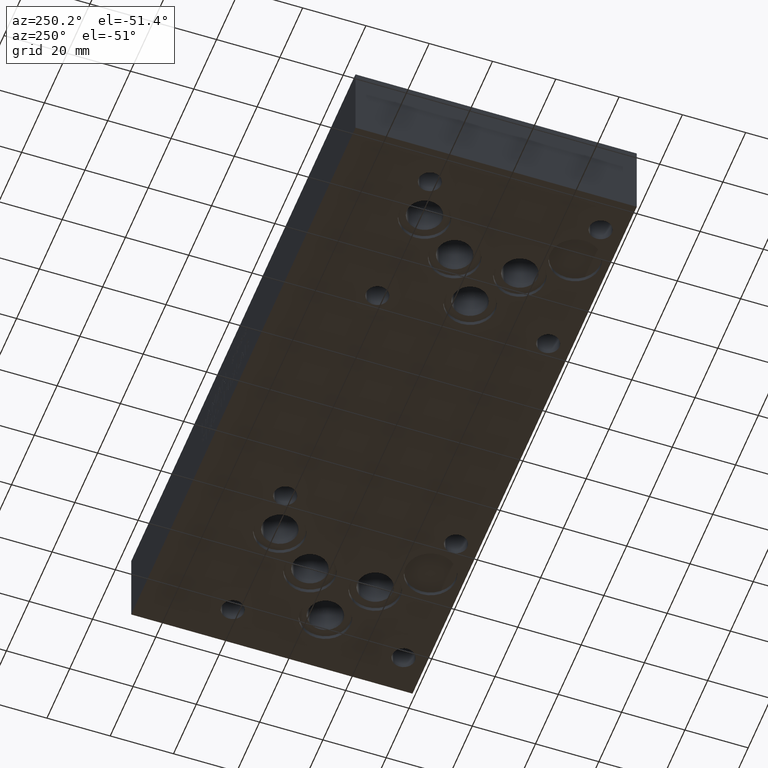
[diagram: clean part render]
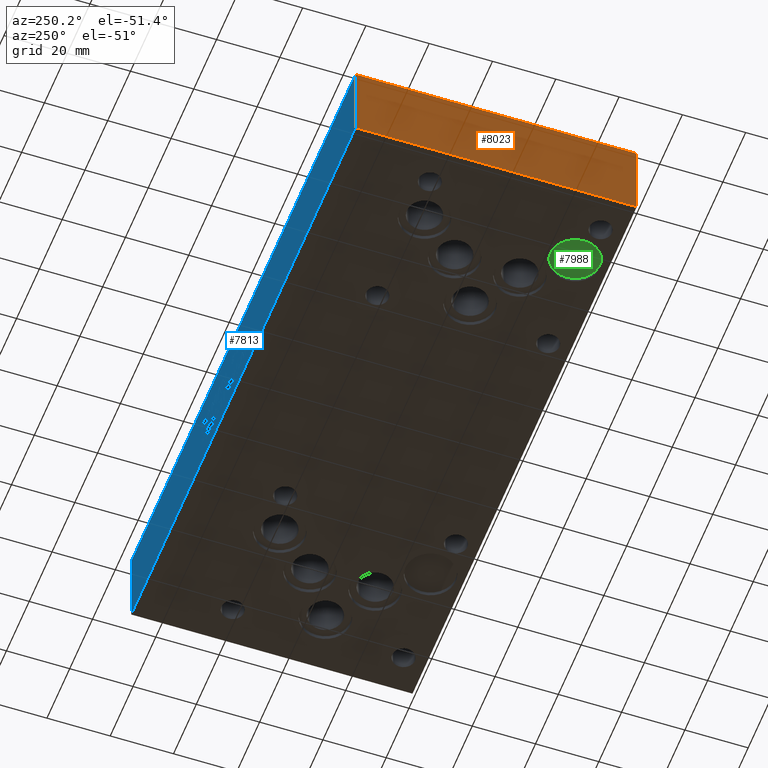
[diagram: same view with three faces highlighted in distinct colors, each labeled with its STEP entity id]
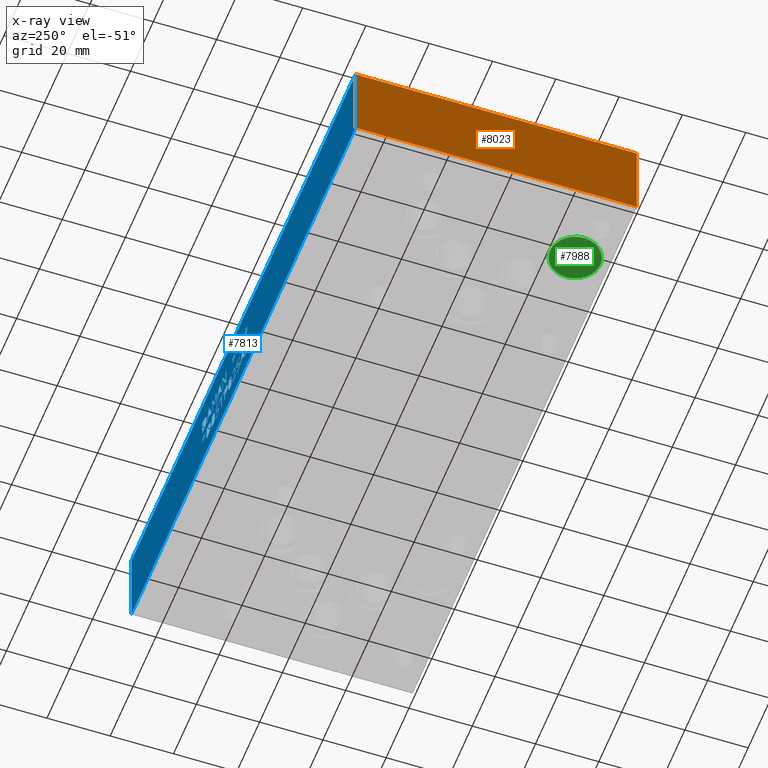
[diagram: x-ray of the same camera — body ghosted, the three highlighted faces saturated]
A machine part, auxiliary view with three faces highlighted in distinct colors.
The next image is the same camera in x-ray (body ghosted, the three faces saturated) — at least one of them is partly hidden behind the body in this view.
Their STEP definitions:

[orange] entity #8023 — the highlighted planar face has unit normal (-1, 0, 0).
#492=PLANE('',#8449);
#891=FACE_OUTER_BOUND('',#1328,.T.);
#1328=EDGE_LOOP('',(#7124,#7125,#7126,#7127));
#1703=LINE('',#12286,#2476);
#2133=LINE('',#13908,#2906);
#2134=LINE('',#13910,#2907);
#2135=LINE('',#13911,#2908);
#2476=VECTOR('',#8978,10.);
#2906=VECTOR('',#10036,10.);
#2907=VECTOR('',#10037,10.);
#2908=VECTOR('',#10038,10.);
#3481=VERTEX_POINT('',#12283);
#3482=VERTEX_POINT('',#12285);
#3882=VERTEX_POINT('',#13907);
#3883=VERTEX_POINT('',#13909);
#4403=EDGE_CURVE('',#3481,#3482,#1703,.T.);
#4985=EDGE_CURVE('',#3481,#3882,#2133,.T.);
#4986=EDGE_CURVE('',#3882,#3883,#2134,.T.);
#4987=EDGE_CURVE('',#3482,#3883,#2135,.T.);
#7124=ORIENTED_EDGE('',*,*,#4985,.T.);
#7125=ORIENTED_EDGE('',*,*,#4986,.T.);
#7126=ORIENTED_EDGE('',*,*,#4987,.F.);
#7127=ORIENTED_EDGE('',*,*,#4403,.F.);
#8023=ADVANCED_FACE('',(#891),#492,.T.);
#8449=AXIS2_PLACEMENT_3D('',#13906,#10034,#10035);
#8978=DIRECTION('',(0.,0.,1.));
#10034=DIRECTION('center_axis',(-1.,0.,0.));
#10035=DIRECTION('ref_axis',(0.,-1.,0.));
#10036=DIRECTION('',(0.,-1.,0.));
#10037=DIRECTION('',(0.,0.,1.));
#10038=DIRECTION('',(0.,-1.,0.));
#12283=CARTESIAN_POINT('',(0.,88.9,0.));
#12285=CARTESIAN_POINT('',(0.,88.9,25.4));
#12286=CARTESIAN_POINT('',(0.,88.9,0.));
#13906=CARTESIAN_POINT('Origin',(0.,88.9,0.));
#13907=CARTESIAN_POINT('',(0.,0.,0.));
#13908=CARTESIAN_POINT('',(0.,88.9,0.));
#13909=CARTESIAN_POINT('',(0.,0.,25.4));
#13910=CARTESIAN_POINT('',(0.,0.,0.));
#13911=CARTESIAN_POINT('',(0.,88.9,25.4));

[blue] entity #7813 — the highlighted planar face has unit normal (0, 1, 0).
#183=FACE_BOUND('',#1088,.T.);
#184=FACE_BOUND('',#1089,.T.);
#185=FACE_BOUND('',#1090,.T.);
#186=FACE_BOUND('',#1091,.T.);
#187=FACE_BOUND('',#1092,.T.);
#188=FACE_BOUND('',#1093,.T.);
#189=FACE_BOUND('',#1094,.T.);
#190=FACE_BOUND('',#1095,.T.);
#191=FACE_BOUND('',#1096,.T.);
#192=FACE_BOUND('',#1097,.T.);
#193=FACE_BOUND('',#1098,.T.);
#194=FACE_BOUND('',#1099,.T.);
#195=FACE_BOUND('',#1100,.T.);
#196=FACE_BOUND('',#1101,.T.);
#197=FACE_BOUND('',#1102,.T.);
#198=FACE_BOUND('',#1103,.T.);
#199=FACE_BOUND('',#1104,.T.);
#200=FACE_BOUND('',#1105,.T.);
#201=FACE_BOUND('',#1106,.T.);
#202=FACE_BOUND('',#1107,.T.);
#340=PLANE('',#8135);
#681=FACE_OUTER_BOUND('',#1087,.T.);
#1087=EDGE_LOOP('',(#5853,#5854,#5855,#5856));
#1088=EDGE_LOOP('',(#5857,#5858,#5859,#5860,#5861,#5862,#5863,#5864,#5865,
#5866,#5867,#5868,#5869,#5870,#5871,#5872,#5873,#5874));
#1089=EDGE_LOOP('',(#5875,#5876,#5877,#5878,#5879,#5880,#5881,#5882,#5883,
#5884,#5885,#5886,#5887,#5888,#5889,#5890,#5891,#5892));
#1090=EDGE_LOOP('',(#5893,#5894,#5895,#5896,#5897,#5898,#5899,#5900,#5901,
#5902,#5903,#5904,#5905));
#1091=EDGE_LOOP('',(#5906,#5907,#5908,#5909,#5910,#5911,#5912,#5913));
#1092=EDGE_LOOP('',(#5914,#5915,#5916,#5917,#5918,#5919,#5920));
#1093=EDGE_LOOP('',(#5921,#5922,#5923,#5924,#5925,#5926,#5927,#5928));
#1094=EDGE_LOOP('',(#5929,#5930,#5931,#5932,#5933,#5934,#5935,#5936,#5937,
#5938));
#1095=EDGE_LOOP('',(#5939,#5940,#5941,#5942,#5943,#5944,#5945,#5946,#5947,
#5948,#5949,#5950,#5951,#5952,#5953,#5954,#5955,#5956));
#1096=EDGE_LOOP('',(#5957,#5958,#5959,#5960,#5961,#5962,#5963,#5964,#5965,
#5966,#5967,#5968,#5969,#5970,#5971,#5972,#5973,#5974));
#1097=EDGE_LOOP('',(#5975,#5976,#5977,#5978,#5979,#5980,#5981,#5982,#5983,
#5984));
#1098=EDGE_LOOP('',(#5985,#5986,#5987,#5988,#5989,#5990,#5991,#5992));
#1099=EDGE_LOOP('',(#5993,#5994,#5995,#5996,#5997,#5998,#5999,#6000,#6001,
#6002,#6003,#6004,#6005,#6006,#6007,#6008,#6009));
#1100=EDGE_LOOP('',(#6010,#6011,#6012,#6013));
#1101=EDGE_LOOP('',(#6014,#6015,#6016,#6017,#6018,#6019,#6020,#6021,#6022));
#1102=EDGE_LOOP('',(#6023,#6024,#6025,#6026,#6027,#6028,#6029,#6030,#6031,
#6032,#6033,#6034,#6035,#6036,#6037,#6038,#6039,#6040,#6041,#6042));
#1103=EDGE_LOOP('',(#6043,#6044,#6045,#6046));
#1104=EDGE_LOOP('',(#6047,#6048,#6049,#6050,#6051,#6052,#6053));
#1105=EDGE_LOOP('',(#6054,#6055,#6056,#6057,#6058,#6059,#6060,#6061,#6062,
#6063,#6064,#6065,#6066,#6067,#6068,#6069,#6070,#6071));
#1106=EDGE_LOOP('',(#6072,#6073,#6074,#6075,#6076,#6077,#6078,#6079));
#1107=EDGE_LOOP('',(#6080,#6081,#6082,#6083,#6084,#6085,#6086,#6087,#6088,
#6089,#6090,#6091,#6092,#6093,#6094,#6095,#6096,#6097,#6098,#6099));
#1372=LINE('',#10117,#2145);
#1375=LINE('',#10123,#2148);
#1378=LINE('',#10129,#2151);
#1381=LINE('',#10135,#2154);
#1384=LINE('',#10141,#2157);
#1394=LINE('',#10280,#2167);
#1397=LINE('',#10286,#2170);
#1402=LINE('',#10348,#2175);
#1406=LINE('',#10356,#2179);
#1409=LINE('',#10362,#2182);
#1412=LINE('',#10368,#2185);
#1415=LINE('',#10374,#2188);
#1418=LINE('',#10380,#2191);
#1421=LINE('',#10386,#2194);
#1424=LINE('',#10391,#2197);
#1426=LINE('',#10397,#2199);
#1430=LINE('',#10405,#2203);
#1433=LINE('',#10411,#2206);
#1436=LINE('',#10417,#2209);
#1439=LINE('',#10423,#2212);
#1442=LINE('',#10429,#2215);
#1445=LINE('',#10435,#2218);
#1448=LINE('',#10441,#2221);
#1451=LINE('',#10447,#2224);
#1454=LINE('',#10453,#2227);
#1457=LINE('',#10459,#2230);
#1460=LINE('',#10465,#2233);
#1463=LINE('',#10471,#2236);
#1466=LINE('',#10477,#2239);
#1469=LINE('',#10483,#2242);
#1472=LINE('',#10489,#2245);
#1475=LINE('',#10495,#2248);
#1478=LINE('',#10500,#2251);
#1496=LINE('',#10640,#2269);
#1499=LINE('',#10646,#2272);
#1502=LINE('',#10652,#2275);
#1522=LINE('',#10983,#2295);
#1525=LINE('',#10989,#2298);
#1528=LINE('',#10995,#2301);
#1531=LINE('',#11001,#2304);
#1534=LINE('',#11007,#2307);
#1544=LINE('',#11146,#2317);
#1547=LINE('',#11152,#2320);
#1568=LINE('',#11348,#2341);
#1571=LINE('',#11354,#2344);
#1574=LINE('',#11360,#2347);
#1577=LINE('',#11366,#2350);
#1580=LINE('',#11372,#2353);
#1596=LINE('',#11644,#2369);
#1600=LINE('',#11652,#2373);
#1608=LINE('',#11753,#2381);
#1611=LINE('',#11759,#2384);
#1620=LINE('',#11879,#2393);
#1623=LINE('',#11884,#2396);
#1634=LINE('',#11908,#2407);
#1638=LINE('',#11916,#2411);
#1641=LINE('',#11922,#2414);
#1644=LINE('',#11928,#2417);
#1647=LINE('',#11934,#2420);
#1650=LINE('',#11940,#2423);
#1653=LINE('',#11946,#2426);
#1656=LINE('',#11951,#2429);
#1686=LINE('',#12166,#2459);
#1692=LINE('',#12229,#2465);
#1695=LINE('',#12235,#2468);
#1698=LINE('',#12241,#2471);
#1702=LINE('',#12284,#2475);
#1703=LINE('',#12286,#2476);
#1704=LINE('',#12288,#2477);
#1705=LINE('',#12289,#2478);
#1706=LINE('',#12292,#2479);
#1707=LINE('',#12294,#2480);
#1708=LINE('',#12296,#2481);
#1709=LINE('',#12298,#2482);
#1710=LINE('',#12300,#2483);
#1711=LINE('',#12302,#2484);
#1712=LINE('',#12304,#2485);
#1713=LINE('',#12306,#2486);
#1714=LINE('',#12308,#2487);
#1715=LINE('',#12310,#2488);
#1716=LINE('',#12312,#2489);
#1717=LINE('',#12314,#2490);
#1718=LINE('',#12316,#2491);
#1719=LINE('',#12318,#2492);
#1720=LINE('',#12320,#2493);
#1721=LINE('',#12322,#2494);
#1722=LINE('',#12324,#2495);
#1723=LINE('',#12325,#2496);
#1724=LINE('',#12328,#2497);
#1725=LINE('',#12330,#2498);
#1726=LINE('',#12332,#2499);
#1727=LINE('',#12334,#2500);
#1728=LINE('',#12336,#2501);
#1729=LINE('',#12338,#2502);
#1730=LINE('',#12340,#2503);
#1731=LINE('',#12342,#2504);
#1732=LINE('',#12344,#2505);
#1733=LINE('',#12346,#2506);
#1734=LINE('',#12348,#2507);
#1735=LINE('',#12350,#2508);
#1736=LINE('',#12352,#2509);
#1737=LINE('',#12354,#2510);
#1738=LINE('',#12356,#2511);
#1739=LINE('',#12358,#2512);
#1740=LINE('',#12360,#2513);
#1741=LINE('',#12361,#2514);
#1742=LINE('',#12364,#2515);
#1743=LINE('',#12366,#2516);
#1744=LINE('',#12368,#2517);
#1745=LINE('',#12370,#2518);
#1746=LINE('',#12372,#2519);
#1747=LINE('',#12374,#2520);
#1748=LINE('',#12376,#2521);
#1749=LINE('',#12378,#2522);
#1750=LINE('',#12380,#2523);
#1751=LINE('',#12382,#2524);
#1752=LINE('',#12384,#2525);
#1753=LINE('',#12386,#2526);
#1754=LINE('',#12387,#2527);
#1755=LINE('',#12390,#2528);
#1756=LINE('',#12392,#2529);
#1757=LINE('',#12394,#2530);
#1758=LINE('',#12396,#2531);
#1759=LINE('',#12398,#2532);
#1760=LINE('',#12400,#2533);
#1761=LINE('',#12402,#2534);
#1762=LINE('',#12403,#2535);
#1763=LINE('',#12421,#2536);
#1764=LINE('',#12423,#2537);
#1765=LINE('',#12425,#2538);
#1766=LINE('',#12432,#2539);
#1767=LINE('',#12434,#2540);
#1768=LINE('',#12436,#2541);
#1769=LINE('',#12438,#2542);
#1770=LINE('',#12440,#2543);
#1771=LINE('',#12442,#2544);
#1772=LINE('',#12444,#2545);
#1773=LINE('',#12445,#2546);
#1774=LINE('',#12448,#2547);
#1775=LINE('',#12450,#2548);
#1776=LINE('',#12452,#2549);
#1777=LINE('',#12454,#2550);
#1778=LINE('',#12456,#2551);
#1779=LINE('',#12458,#2552);
#1780=LINE('',#12460,#2553);
#1781=LINE('',#12462,#2554);
#1782=LINE('',#12464,#2555);
#1783=LINE('',#12465,#2556);
#1784=LINE('',#12468,#2557);
#1785=LINE('',#12470,#2558);
#1786=LINE('',#12472,#2559);
#1787=LINE('',#12474,#2560);
#1788=LINE('',#12476,#2561);
#1789=LINE('',#12478,#2562);
#1790=LINE('',#12480,#2563);
#1791=LINE('',#12482,#2564);
#1792=LINE('',#12484,#2565);
#1793=LINE('',#12486,#2566);
#1794=LINE('',#12488,#2567);
#1795=LINE('',#12490,#2568);
#1796=LINE('',#12492,#2569);
#1797=LINE('',#12494,#2570);
#1798=LINE('',#12496,#2571);
#1799=LINE('',#12498,#2572);
#1800=LINE('',#12500,#2573);
#1801=LINE('',#12501,#2574);
#1802=LINE('',#12504,#2575);
#1803=LINE('',#12506,#2576);
#1804=LINE('',#12508,#2577);
#1805=LINE('',#12510,#2578);
#1806=LINE('',#12512,#2579);
#1807=LINE('',#12514,#2580);
#1808=LINE('',#12516,#2581);
#1809=LINE('',#12518,#2582);
#1810=LINE('',#12520,#2583);
#1811=LINE('',#12522,#2584);
#1812=LINE('',#12524,#2585);
#1813=LINE('',#12526,#2586);
#1814=LINE('',#12528,#2587);
#1815=LINE('',#12530,#2588);
#1816=LINE('',#12532,#2589);
#1817=LINE('',#12534,#2590);
#1818=LINE('',#12536,#2591);
#1819=LINE('',#12537,#2592);
#2145=VECTOR('',#8463,10.);
#2148=VECTOR('',#8468,10.);
#2151=VECTOR('',#8473,10.);
#2154=VECTOR('',#8478,10.);
#2157=VECTOR('',#8483,10.);
#2167=VECTOR('',#8495,10.);
#2170=VECTOR('',#8500,10.);
#2175=VECTOR('',#8509,10.);
#2179=VECTOR('',#8515,10.);
#2182=VECTOR('',#8520,10.);
#2185=VECTOR('',#8525,10.);
#2188=VECTOR('',#8530,10.);
#2191=VECTOR('',#8535,10.);
#2194=VECTOR('',#8540,10.);
#2197=VECTOR('',#8545,10.);
#2199=VECTOR('',#8551,10.);
#2203=VECTOR('',#8557,10.);
#2206=VECTOR('',#8562,10.);
#2209=VECTOR('',#8567,10.);
#2212=VECTOR('',#8572,10.);
#2215=VECTOR('',#8577,10.);
#2218=VECTOR('',#8582,10.);
#2221=VECTOR('',#8587,10.);
#2224=VECTOR('',#8592,10.);
#2227=VECTOR('',#8597,10.);
#2230=VECTOR('',#8602,10.);
#2233=VECTOR('',#8607,10.);
#2236=VECTOR('',#8612,10.);
#2239=VECTOR('',#8617,10.);
#2242=VECTOR('',#8622,10.);
#2245=VECTOR('',#8627,10.);
#2248=VECTOR('',#8632,10.);
#2251=VECTOR('',#8637,10.);
#2269=VECTOR('',#8665,10.);
#2272=VECTOR('',#8670,10.);
#2275=VECTOR('',#8675,10.);
#2295=VECTOR('',#8701,10.);
#2298=VECTOR('',#8706,10.);
#2301=VECTOR('',#8711,10.);
#2304=VECTOR('',#8716,10.);
#2307=VECTOR('',#8721,10.);
#2317=VECTOR('',#8733,10.);
#2320=VECTOR('',#8738,10.);
#2341=VECTOR('',#8769,10.);
#2344=VECTOR('',#8774,10.);
#2347=VECTOR('',#8779,10.);
#2350=VECTOR('',#8784,10.);
#2353=VECTOR('',#8789,10.);
#2369=VECTOR('',#8811,10.);
#2373=VECTOR('',#8817,10.);
#2381=VECTOR('',#8827,10.);
#2384=VECTOR('',#8832,10.);
#2393=VECTOR('',#8843,10.);
#2396=VECTOR('',#8848,10.);
#2407=VECTOR('',#8869,10.);
#2411=VECTOR('',#8875,10.);
#2414=VECTOR('',#8880,10.);
#2417=VECTOR('',#8885,10.);
#2420=VECTOR('',#8890,10.);
#2423=VECTOR('',#8895,10.);
#2426=VECTOR('',#8900,10.);
#2429=VECTOR('',#8905,10.);
#2459=VECTOR('',#8951,10.);
#2465=VECTOR('',#8959,10.);
#2468=VECTOR('',#8964,10.);
#2471=VECTOR('',#8969,10.);
#2475=VECTOR('',#8977,10.);
#2476=VECTOR('',#8978,10.);
#2477=VECTOR('',#8979,10.);
#2478=VECTOR('',#8980,10.);
#2479=VECTOR('',#8981,10.);
#2480=VECTOR('',#8982,10.);
#2481=VECTOR('',#8983,10.);
#2482=VECTOR('',#8984,10.);
#2483=VECTOR('',#8985,10.);
#2484=VECTOR('',#8986,10.);
#2485=VECTOR('',#8987,10.);
#2486=VECTOR('',#8988,10.);
#2487=VECTOR('',#8989,10.);
#2488=VECTOR('',#8990,10.);
#2489=VECTOR('',#8991,10.);
#2490=VECTOR('',#8992,10.);
#2491=VECTOR('',#8993,10.);
#2492=VECTOR('',#8994,10.);
#2493=VECTOR('',#8995,10.);
#2494=VECTOR('',#8996,10.);
#2495=VECTOR('',#8997,10.);
#2496=VECTOR('',#8998,10.);
#2497=VECTOR('',#8999,10.);
#2498=VECTOR('',#9000,10.);
#2499=VECTOR('',#9001,10.);
#2500=VECTOR('',#9002,10.);
#2501=VECTOR('',#9003,10.);
#2502=VECTOR('',#9004,10.);
#2503=VECTOR('',#9005,10.);
#2504=VECTOR('',#9006,10.);
#2505=VECTOR('',#9007,10.);
#2506=VECTOR('',#9008,10.);
#2507=VECTOR('',#9009,10.);
#2508=VECTOR('',#9010,10.);
#2509=VECTOR('',#9011,10.);
#2510=VECTOR('',#9012,10.);
#2511=VECTOR('',#9013,10.);
#2512=VECTOR('',#9014,10.);
#2513=VECTOR('',#9015,10.);
#2514=VECTOR('',#9016,10.);
#2515=VECTOR('',#9017,10.);
#2516=VECTOR('',#9018,10.);
#2517=VECTOR('',#9019,10.);
#2518=VECTOR('',#9020,10.);
#2519=VECTOR('',#9021,10.);
#2520=VECTOR('',#9022,10.);
#2521=VECTOR('',#9023,10.);
#2522=VECTOR('',#9024,10.);
#2523=VECTOR('',#9025,10.);
#2524=VECTOR('',#9026,10.);
#2525=VECTOR('',#9027,10.);
#2526=VECTOR('',#9028,10.);
#2527=VECTOR('',#9029,10.);
#2528=VECTOR('',#9030,10.);
#2529=VECTOR('',#9031,10.);
#2530=VECTOR('',#9032,10.);
#2531=VECTOR('',#9033,10.);
#2532=VECTOR('',#9034,10.);
#2533=VECTOR('',#9035,10.);
#2534=VECTOR('',#9036,10.);
#2535=VECTOR('',#9037,10.);
#2536=VECTOR('',#9038,10.);
#2537=VECTOR('',#9039,10.);
#2538=VECTOR('',#9040,10.);
#2539=VECTOR('',#9041,10.);
#2540=VECTOR('',#9042,10.);
#2541=VECTOR('',#9043,10.);
#2542=VECTOR('',#9044,10.);
#2543=VECTOR('',#9045,10.);
#2544=VECTOR('',#9046,10.);
#2545=VECTOR('',#9047,10.);
#2546=VECTOR('',#9048,10.);
#2547=VECTOR('',#9049,10.);
#2548=VECTOR('',#9050,10.);
#2549=VECTOR('',#9051,10.);
#2550=VECTOR('',#9052,10.);
#2551=VECTOR('',#9053,10.);
#2552=VECTOR('',#9054,10.);
#2553=VECTOR('',#9055,10.);
#2554=VECTOR('',#9056,10.);
#2555=VECTOR('',#9057,10.);
#2556=VECTOR('',#9058,10.);
#2557=VECTOR('',#9059,10.);
#2558=VECTOR('',#9060,10.);
#2559=VECTOR('',#9061,10.);
#2560=VECTOR('',#9062,10.);
#2561=VECTOR('',#9063,10.);
#2562=VECTOR('',#9064,10.);
#2563=VECTOR('',#9065,10.);
#2564=VECTOR('',#9066,10.);
#2565=VECTOR('',#9067,10.);
#2566=VECTOR('',#9068,10.);
#2567=VECTOR('',#9069,10.);
#2568=VECTOR('',#9070,10.);
#2569=VECTOR('',#9071,10.);
#2570=VECTOR('',#9072,10.);
#2571=VECTOR('',#9073,10.);
#2572=VECTOR('',#9074,10.);
#2573=VECTOR('',#9075,10.);
#2574=VECTOR('',#9076,10.);
#2575=VECTOR('',#9077,10.);
#2576=VECTOR('',#9078,10.);
#2577=VECTOR('',#9079,10.);
#2578=VECTOR('',#9080,10.);
#2579=VECTOR('',#9081,10.);
#2580=VECTOR('',#9082,10.);
#2581=VECTOR('',#9083,10.);
#2582=VECTOR('',#9084,10.);
#2583=VECTOR('',#9085,10.);
#2584=VECTOR('',#9086,10.);
#2585=VECTOR('',#9087,10.);
#2586=VECTOR('',#9088,10.);
#2587=VECTOR('',#9089,10.);
#2588=VECTOR('',#9090,10.);
#2589=VECTOR('',#9091,10.);
#2590=VECTOR('',#9092,10.);
#2591=VECTOR('',#9093,10.);
#2592=VECTOR('',#9094,10.);
#2914=B_SPLINE_CURVE_WITH_KNOTS('',2,(#10065,#10066,#10067,#10068),
 .UNSPECIFIED.,.F.,.F.,(3,1,3),(0.,1.,2.),.UNSPECIFIED.);
#2916=B_SPLINE_CURVE_WITH_KNOTS('',2,(#10086,#10087,#10088,#10089),
 .UNSPECIFIED.,.F.,.F.,(3,1,3),(0.,1.,2.),.UNSPECIFIED.);
#2918=B_SPLINE_CURVE_WITH_KNOTS('',2,(#10105,#10106,#10107,#10108),
 .UNSPECIFIED.,.F.,.F.,(3,1,3),(0.,1.,2.),.UNSPECIFIED.);
#2920=B_SPLINE_CURVE_WITH_KNOTS('',2,(#10154,#10155,#10156,#10157),
 .UNSPECIFIED.,.F.,.F.,(3,1,3),(0.,1.,2.),.UNSPECIFIED.);
#2922=B_SPLINE_CURVE_WITH_KNOTS('',2,(#10173,#10174,#10175,#10176),
 .UNSPECIFIED.,.F.,.F.,(3,1,3),(0.,1.,2.),.UNSPECIFIED.);
#2924=B_SPLINE_CURVE_WITH_KNOTS('',2,(#10192,#10193,#10194,#10195),
 .UNSPECIFIED.,.F.,.F.,(3,1,3),(0.,1.,2.),.UNSPECIFIED.);
#2926=B_SPLINE_CURVE_WITH_KNOTS('',2,(#10211,#10212,#10213,#10214),
 .UNSPECIFIED.,.F.,.F.,(3,1,3),(0.,1.,2.),.UNSPECIFIED.);
#2928=B_SPLINE_CURVE_WITH_KNOTS('',2,(#10230,#10231,#10232,#10233),
 .UNSPECIFIED.,.F.,.F.,(3,1,3),(0.,1.,2.),.UNSPECIFIED.);
#2930=B_SPLINE_CURVE_WITH_KNOTS('',2,(#10249,#10250,#10251,#10252),
 .UNSPECIFIED.,.F.,.F.,(3,1,3),(0.,1.,2.),.UNSPECIFIED.);
#2932=B_SPLINE_CURVE_WITH_KNOTS('',2,(#10268,#10269,#10270,#10271),
 .UNSPECIFIED.,.F.,.F.,(3,1,3),(0.,1.,2.),.UNSPECIFIED.);
#2934=B_SPLINE_CURVE_WITH_KNOTS('',2,(#10299,#10300,#10301,#10302),
 .UNSPECIFIED.,.F.,.F.,(3,1,3),(0.,1.,2.),.UNSPECIFIED.);
#2936=B_SPLINE_CURVE_WITH_KNOTS('',2,(#10318,#10319,#10320,#10321),
 .UNSPECIFIED.,.F.,.F.,(3,1,3),(0.,1.,2.),.UNSPECIFIED.);
#2938=B_SPLINE_CURVE_WITH_KNOTS('',2,(#10336,#10337,#10338,#10339),
 .UNSPECIFIED.,.F.,.F.,(3,1,3),(0.,1.,2.),.UNSPECIFIED.);
#2948=B_SPLINE_CURVE_WITH_KNOTS('',2,(#10607,#10608,#10609,#10610),
 .UNSPECIFIED.,.F.,.F.,(3,1,3),(0.,1.,2.),.UNSPECIFIED.);
#2950=B_SPLINE_CURVE_WITH_KNOTS('',2,(#10628,#10629,#10630,#10631),
 .UNSPECIFIED.,.F.,.F.,(3,1,3),(0.,1.,2.),.UNSPECIFIED.);
#2952=B_SPLINE_CURVE_WITH_KNOTS('',2,(#10665,#10666,#10667,#10668),
 .UNSPECIFIED.,.F.,.F.,(3,1,3),(0.,1.,2.),.UNSPECIFIED.);
#2954=B_SPLINE_CURVE_WITH_KNOTS('',2,(#10683,#10684,#10685,#10686),
 .UNSPECIFIED.,.F.,.F.,(3,1,3),(0.,1.,2.),.UNSPECIFIED.);
#2972=B_SPLINE_CURVE_WITH_KNOTS('',2,(#10854,#10855,#10856,#10857),
 .UNSPECIFIED.,.F.,.F.,(3,1,3),(0.,1.,2.),.UNSPECIFIED.);
#2974=B_SPLINE_CURVE_WITH_KNOTS('',2,(#10875,#10876,#10877,#10878),
 .UNSPECIFIED.,.F.,.F.,(3,1,3),(0.,1.,2.),.UNSPECIFIED.);
#2976=B_SPLINE_CURVE_WITH_KNOTS('',2,(#10894,#10895,#10896,#10897),
 .UNSPECIFIED.,.F.,.F.,(3,1,3),(0.,1.,2.),.UNSPECIFIED.);
#2978=B_SPLINE_CURVE_WITH_KNOTS('',2,(#10912,#10913,#10914,#10915),
 .UNSPECIFIED.,.F.,.F.,(3,1,3),(0.,1.,2.),.UNSPECIFIED.);
#2980=B_SPLINE_CURVE_WITH_KNOTS('',2,(#10931,#10932,#10933,#10934),
 .UNSPECIFIED.,.F.,.F.,(3,1,3),(0.,1.,2.),.UNSPECIFIED.);
#2982=B_SPLINE_CURVE_WITH_KNOTS('',2,(#10952,#10953,#10954,#10955),
 .UNSPECIFIED.,.F.,.F.,(3,1,3),(0.,1.,2.),.UNSPECIFIED.);
#2984=B_SPLINE_CURVE_WITH_KNOTS('',2,(#10971,#10972,#10973,#10974),
 .UNSPECIFIED.,.F.,.F.,(3,1,3),(0.,1.,2.),.UNSPECIFIED.);
#2986=B_SPLINE_CURVE_WITH_KNOTS('',2,(#11020,#11021,#11022,#11023),
 .UNSPECIFIED.,.F.,.F.,(3,1,3),(0.,1.,2.),.UNSPECIFIED.);
#2988=B_SPLINE_CURVE_WITH_KNOTS('',2,(#11039,#11040,#11041,#11042),
 .UNSPECIFIED.,.F.,.F.,(3,1,3),(0.,1.,2.),.UNSPECIFIED.);
#2990=B_SPLINE_CURVE_WITH_KNOTS('',2,(#11058,#11059,#11060,#11061),
 .UNSPECIFIED.,.F.,.F.,(3,1,3),(0.,1.,2.),.UNSPECIFIED.);
#2992=B_SPLINE_CURVE_WITH_KNOTS('',2,(#11077,#11078,#11079,#11080),
 .UNSPECIFIED.,.F.,.F.,(3,1,3),(0.,1.,2.),.UNSPECIFIED.);
#2994=B_SPLINE_CURVE_WITH_KNOTS('',2,(#11096,#11097,#11098,#11099),
 .UNSPECIFIED.,.F.,.F.,(3,1,3),(0.,1.,2.),.UNSPECIFIED.);
#2996=B_SPLINE_CURVE_WITH_KNOTS('',2,(#11115,#11116,#11117,#11118),
 .UNSPECIFIED.,.F.,.F.,(3,1,3),(0.,1.,2.),.UNSPECIFIED.);
#2998=B_SPLINE_CURVE_WITH_KNOTS('',2,(#11134,#11135,#11136,#11137),
 .UNSPECIFIED.,.F.,.F.,(3,1,3),(0.,1.,2.),.UNSPECIFIED.);
#3000=B_SPLINE_CURVE_WITH_KNOTS('',2,(#11165,#11166,#11167,#11168),
 .UNSPECIFIED.,.F.,.F.,(3,1,3),(0.,1.,2.),.UNSPECIFIED.);
#3002=B_SPLINE_CURVE_WITH_KNOTS('',2,(#11184,#11185,#11186,#11187),
 .UNSPECIFIED.,.F.,.F.,(3,1,3),(0.,1.,2.),.UNSPECIFIED.);
#3004=B_SPLINE_CURVE_WITH_KNOTS('',2,(#11202,#11203,#11204,#11205),
 .UNSPECIFIED.,.F.,.F.,(3,1,3),(0.,1.,2.),.UNSPECIFIED.);
#3014=B_SPLINE_CURVE_WITH_KNOTS('',2,(#11315,#11316,#11317,#11318),
 .UNSPECIFIED.,.F.,.F.,(3,1,3),(0.,1.,2.),.UNSPECIFIED.);
#3016=B_SPLINE_CURVE_WITH_KNOTS('',2,(#11336,#11337,#11338,#11339),
 .UNSPECIFIED.,.F.,.F.,(3,1,3),(0.,1.,2.),.UNSPECIFIED.);
#3018=B_SPLINE_CURVE_WITH_KNOTS('',2,(#11385,#11386,#11387,#11388),
 .UNSPECIFIED.,.F.,.F.,(3,1,3),(0.,1.,2.),.UNSPECIFIED.);
#3020=B_SPLINE_CURVE_WITH_KNOTS('',2,(#11403,#11404,#11405,#11406),
 .UNSPECIFIED.,.F.,.F.,(3,1,3),(0.,1.,2.),.UNSPECIFIED.);
#3038=B_SPLINE_CURVE_WITH_KNOTS('',2,(#11574,#11575,#11576,#11577),
 .UNSPECIFIED.,.F.,.F.,(3,1,3),(0.,1.,2.),.UNSPECIFIED.);
#3040=B_SPLINE_CURVE_WITH_KNOTS('',2,(#11595,#11596,#11597,#11598),
 .UNSPECIFIED.,.F.,.F.,(3,1,3),(0.,1.,2.),.UNSPECIFIED.);
#3042=B_SPLINE_CURVE_WITH_KNOTS('',2,(#11614,#11615,#11616,#11617),
 .UNSPECIFIED.,.F.,.F.,(3,1,3),(0.,1.,2.),.UNSPECIFIED.);
#3044=B_SPLINE_CURVE_WITH_KNOTS('',2,(#11632,#11633,#11634,#11635),
 .UNSPECIFIED.,.F.,.F.,(3,1,3),(0.,1.,2.),.UNSPECIFIED.);
#3046=B_SPLINE_CURVE_WITH_KNOTS('',2,(#11665,#11666,#11667,#11668),
 .UNSPECIFIED.,.F.,.F.,(3,1,3),(0.,1.,2.),.UNSPECIFIED.);
#3048=B_SPLINE_CURVE_WITH_KNOTS('',2,(#11684,#11685,#11686,#11687),
 .UNSPECIFIED.,.F.,.F.,(3,1,3),(0.,1.,2.),.UNSPECIFIED.);
#3050=B_SPLINE_CURVE_WITH_KNOTS('',2,(#11703,#11704,#11705,#11706),
 .UNSPECIFIED.,.F.,.F.,(3,1,3),(0.,1.,2.),.UNSPECIFIED.);
#3052=B_SPLINE_CURVE_WITH_KNOTS('',2,(#11722,#11723,#11724,#11725),
 .UNSPECIFIED.,.F.,.F.,(3,1,3),(0.,1.,2.),.UNSPECIFIED.);
#3054=B_SPLINE_CURVE_WITH_KNOTS('',2,(#11741,#11742,#11743,#11744),
 .UNSPECIFIED.,.F.,.F.,(3,1,3),(0.,1.,2.),.UNSPECIFIED.);
#3056=B_SPLINE_CURVE_WITH_KNOTS('',2,(#11772,#11773,#11774,#11775),
 .UNSPECIFIED.,.F.,.F.,(3,1,3),(0.,1.,2.),.UNSPECIFIED.);
#3058=B_SPLINE_CURVE_WITH_KNOTS('',2,(#11791,#11792,#11793,#11794),
 .UNSPECIFIED.,.F.,.F.,(3,1,3),(0.,1.,2.),.UNSPECIFIED.);
#3060=B_SPLINE_CURVE_WITH_KNOTS('',2,(#11810,#11811,#11812,#11813),
 .UNSPECIFIED.,.F.,.F.,(3,1,3),(0.,1.,2.),.UNSPECIFIED.);
#3062=B_SPLINE_CURVE_WITH_KNOTS('',2,(#11829,#11830,#11831,#11832),
 .UNSPECIFIED.,.F.,.F.,(3,1,3),(0.,1.,2.),.UNSPECIFIED.);
#3064=B_SPLINE_CURVE_WITH_KNOTS('',2,(#11848,#11849,#11850,#11851),
 .UNSPECIFIED.,.F.,.F.,(3,1,3),(0.,1.,2.),.UNSPECIFIED.);
#3066=B_SPLINE_CURVE_WITH_KNOTS('',2,(#11867,#11868,#11869,#11870),
 .UNSPECIFIED.,.F.,.F.,(3,1,3),(0.,1.,2.),.UNSPECIFIED.);
#3084=B_SPLINE_CURVE_WITH_KNOTS('',2,(#12152,#12153,#12154,#12155),
 .UNSPECIFIED.,.F.,.F.,(3,1,3),(0.,1.,2.),.UNSPECIFIED.);
#3086=B_SPLINE_CURVE_WITH_KNOTS('',2,(#12179,#12180,#12181,#12182),
 .UNSPECIFIED.,.F.,.F.,(3,1,3),(0.,1.,2.),.UNSPECIFIED.);
#3088=B_SPLINE_CURVE_WITH_KNOTS('',2,(#12198,#12199,#12200,#12201),
 .UNSPECIFIED.,.F.,.F.,(3,1,3),(0.,1.,2.),.UNSPECIFIED.);
#3090=B_SPLINE_CURVE_WITH_KNOTS('',2,(#12217,#12218,#12219,#12220),
 .UNSPECIFIED.,.F.,.F.,(3,1,3),(0.,1.,2.),.UNSPECIFIED.);
#3092=B_SPLINE_CURVE_WITH_KNOTS('',2,(#12254,#12255,#12256,#12257),
 .UNSPECIFIED.,.F.,.F.,(3,1,3),(0.,1.,2.),.UNSPECIFIED.);
#3094=B_SPLINE_CURVE_WITH_KNOTS('',2,(#12272,#12273,#12274,#12275),
 .UNSPECIFIED.,.F.,.F.,(3,1,3),(0.,1.,2.),.UNSPECIFIED.);
#3096=B_SPLINE_CURVE_WITH_KNOTS('',2,(#12406,#12407,#12408,#12409),
 .UNSPECIFIED.,.F.,.F.,(3,1,3),(0.,1.,2.),.UNSPECIFIED.);
#3097=B_SPLINE_CURVE_WITH_KNOTS('',2,(#12411,#12412,#12413,#12414),
 .UNSPECIFIED.,.F.,.F.,(3,1,3),(0.,1.,2.),.UNSPECIFIED.);
#3098=B_SPLINE_CURVE_WITH_KNOTS('',2,(#12416,#12417,#12418,#12419),
 .UNSPECIFIED.,.F.,.F.,(3,1,3),(0.,1.,2.),.UNSPECIFIED.);
#3099=B_SPLINE_CURVE_WITH_KNOTS('',2,(#12426,#12427,#12428,#12429),
 .UNSPECIFIED.,.F.,.F.,(3,1,3),(0.,1.,2.),.UNSPECIFIED.);
#3136=VERTEX_POINT('',#10063);
#3137=VERTEX_POINT('',#10064);
#3140=VERTEX_POINT('',#10085);
#3142=VERTEX_POINT('',#10104);
#3144=VERTEX_POINT('',#10116);
#3146=VERTEX_POINT('',#10122);
#3148=VERTEX_POINT('',#10128);
#3150=VERTEX_POINT('',#10134);
#3152=VERTEX_POINT('',#10140);
#3154=VERTEX_POINT('',#10153);
#3156=VERTEX_POINT('',#10172);
#3158=VERTEX_POINT('',#10191);
#3160=VERTEX_POINT('',#10210);
#3162=VERTEX_POINT('',#10229);
#3164=VERTEX_POINT('',#10248);
#3166=VERTEX_POINT('',#10267);
#3168=VERTEX_POINT('',#10279);
#3170=VERTEX_POINT('',#10285);
#3172=VERTEX_POINT('',#10298);
#3174=VERTEX_POINT('',#10317);
#3176=VERTEX_POINT('',#10346);
#3177=VERTEX_POINT('',#10347);
#3180=VERTEX_POINT('',#10355);
#3182=VERTEX_POINT('',#10361);
#3184=VERTEX_POINT('',#10367);
#3186=VERTEX_POINT('',#10373);
#3188=VERTEX_POINT('',#10379);
#3190=VERTEX_POINT('',#10385);
#3192=VERTEX_POINT('',#10395);
#3193=VERTEX_POINT('',#10396);
#3196=VERTEX_POINT('',#10404);
#3198=VERTEX_POINT('',#10410);
#3200=VERTEX_POINT('',#10416);
#3202=VERTEX_POINT('',#10422);
#3204=VERTEX_POINT('',#10428);
#3206=VERTEX_POINT('',#10434);
#3208=VERTEX_POINT('',#10440);
#3210=VERTEX_POINT('',#10446);
#3212=VERTEX_POINT('',#10452);
#3214=VERTEX_POINT('',#10458);
#3216=VERTEX_POINT('',#10464);
#3218=VERTEX_POINT('',#10470);
#3220=VERTEX_POINT('',#10476);
#3222=VERTEX_POINT('',#10482);
#3224=VERTEX_POINT('',#10488);
#3226=VERTEX_POINT('',#10494);
#3242=VERTEX_POINT('',#10605);
#3243=VERTEX_POINT('',#10606);
#3246=VERTEX_POINT('',#10627);
#3248=VERTEX_POINT('',#10639);
#3250=VERTEX_POINT('',#10645);
#3252=VERTEX_POINT('',#10651);
#3254=VERTEX_POINT('',#10664);
#3272=VERTEX_POINT('',#10852);
#3273=VERTEX_POINT('',#10853);
#3276=VERTEX_POINT('',#10874);
#3278=VERTEX_POINT('',#10893);
#3280=VERTEX_POINT('',#10929);
#3281=VERTEX_POINT('',#10930);
#3284=VERTEX_POINT('',#10951);
#3286=VERTEX_POINT('',#10970);
#3288=VERTEX_POINT('',#10982);
#3290=VERTEX_POINT('',#10988);
#3292=VERTEX_POINT('',#10994);
#3294=VERTEX_POINT('',#11000);
#3296=VERTEX_POINT('',#11006);
#3298=VERTEX_POINT('',#11019);
#3300=VERTEX_POINT('',#11038);
#3302=VERTEX_POINT('',#11057);
#3304=VERTEX_POINT('',#11076);
#3306=VERTEX_POINT('',#11095);
#3308=VERTEX_POINT('',#11114);
#3310=VERTEX_POINT('',#11133);
#3312=VERTEX_POINT('',#11145);
#3314=VERTEX_POINT('',#11151);
#3316=VERTEX_POINT('',#11164);
#3318=VERTEX_POINT('',#11183);
#3334=VERTEX_POINT('',#11313);
#3335=VERTEX_POINT('',#11314);
#3338=VERTEX_POINT('',#11335);
#3340=VERTEX_POINT('',#11347);
#3342=VERTEX_POINT('',#11353);
#3344=VERTEX_POINT('',#11359);
#3346=VERTEX_POINT('',#11365);
#3348=VERTEX_POINT('',#11371);
#3350=VERTEX_POINT('',#11384);
#3368=VERTEX_POINT('',#11572);
#3369=VERTEX_POINT('',#11573);
#3372=VERTEX_POINT('',#11594);
#3374=VERTEX_POINT('',#11613);
#3376=VERTEX_POINT('',#11642);
#3377=VERTEX_POINT('',#11643);
#3380=VERTEX_POINT('',#11651);
#3382=VERTEX_POINT('',#11664);
#3384=VERTEX_POINT('',#11683);
#3386=VERTEX_POINT('',#11702);
#3388=VERTEX_POINT('',#11721);
#3390=VERTEX_POINT('',#11740);
#3392=VERTEX_POINT('',#11752);
#3394=VERTEX_POINT('',#11758);
#3396=VERTEX_POINT('',#11771);
#3398=VERTEX_POINT('',#11790);
#3400=VERTEX_POINT('',#11809);
#3402=VERTEX_POINT('',#11828);
#3404=VERTEX_POINT('',#11847);
#3406=VERTEX_POINT('',#11866);
#3408=VERTEX_POINT('',#11878);
#3416=VERTEX_POINT('',#11906);
#3417=VERTEX_POINT('',#11907);
#3420=VERTEX_POINT('',#11915);
#3422=VERTEX_POINT('',#11921);
#3424=VERTEX_POINT('',#11927);
#3426=VERTEX_POINT('',#11933);
#3428=VERTEX_POINT('',#11939);
#3430=VERTEX_POINT('',#11945);
#3460=VERTEX_POINT('',#12150);
#3461=VERTEX_POINT('',#12151);
#3464=VERTEX_POINT('',#12165);
#3466=VERTEX_POINT('',#12178);
#3468=VERTEX_POINT('',#12197);
#3470=VERTEX_POINT('',#12216);
#3472=VERTEX_POINT('',#12228);
#3474=VERTEX_POINT('',#12234);
#3476=VERTEX_POINT('',#12240);
#3478=VERTEX_POINT('',#12253);
#3480=VERTEX_POINT('',#12282);
#3481=VERTEX_POINT('',#12283);
#3482=VERTEX_POINT('',#12285);
#3483=VERTEX_POINT('',#12287);
#3484=VERTEX_POINT('',#12290);
#3485=VERTEX_POINT('',#12291);
#3486=VERTEX_POINT('',#12293);
#3487=VERTEX_POINT('',#12295);
#3488=VERTEX_POINT('',#12297);
#3489=VERTEX_POINT('',#12299);
#3490=VERTEX_POINT('',#12301);
#3491=VERTEX_POINT('',#12303);
#3492=VERTEX_POINT('',#12305);
#3493=VERTEX_POINT('',#12307);
#3494=VERTEX_POINT('',#12309);
#3495=VERTEX_POINT('',#12311);
#3496=VERTEX_POINT('',#12313);
#3497=VERTEX_POINT('',#12315);
#3498=VERTEX_POINT('',#12317);
#3499=VERTEX_POINT('',#12319);
#3500=VERTEX_POINT('',#12321);
#3501=VERTEX_POINT('',#12323);
#3502=VERTEX_POINT('',#12326);
#3503=VERTEX_POINT('',#12327);
#3504=VERTEX_POINT('',#12329);
#3505=VERTEX_POINT('',#12331);
#3506=VERTEX_POINT('',#12333);
#3507=VERTEX_POINT('',#12335);
#3508=VERTEX_POINT('',#12337);
#3509=VERTEX_POINT('',#12339);
#3510=VERTEX_POINT('',#12341);
#3511=VERTEX_POINT('',#12343);
#3512=VERTEX_POINT('',#12345);
#3513=VERTEX_POINT('',#12347);
#3514=VERTEX_POINT('',#12349);
#3515=VERTEX_POINT('',#12351);
#3516=VERTEX_POINT('',#12353);
#3517=VERTEX_POINT('',#12355);
#3518=VERTEX_POINT('',#12357);
#3519=VERTEX_POINT('',#12359);
#3520=VERTEX_POINT('',#12362);
#3521=VERTEX_POINT('',#12363);
#3522=VERTEX_POINT('',#12365);
#3523=VERTEX_POINT('',#12367);
#3524=VERTEX_POINT('',#12369);
#3525=VERTEX_POINT('',#12371);
#3526=VERTEX_POINT('',#12373);
#3527=VERTEX_POINT('',#12375);
#3528=VERTEX_POINT('',#12377);
#3529=VERTEX_POINT('',#12379);
#3530=VERTEX_POINT('',#12381);
#3531=VERTEX_POINT('',#12383);
#3532=VERTEX_POINT('',#12385);
#3533=VERTEX_POINT('',#12388);
#3534=VERTEX_POINT('',#12389);
#3535=VERTEX_POINT('',#12391);
#3536=VERTEX_POINT('',#12393);
#3537=VERTEX_POINT('',#12395);
#3538=VERTEX_POINT('',#12397);
#3539=VERTEX_POINT('',#12399);
#3540=VERTEX_POINT('',#12401);
#3541=VERTEX_POINT('',#12404);
#3542=VERTEX_POINT('',#12405);
#3543=VERTEX_POINT('',#12410);
#3544=VERTEX_POINT('',#12415);
#3545=VERTEX_POINT('',#12420);
#3546=VERTEX_POINT('',#12422);
#3547=VERTEX_POINT('',#12424);
#3548=VERTEX_POINT('',#12430);
#3549=VERTEX_POINT('',#12431);
#3550=VERTEX_POINT('',#12433);
#3551=VERTEX_POINT('',#12435);
#3552=VERTEX_POINT('',#12437);
#3553=VERTEX_POINT('',#12439);
#3554=VERTEX_POINT('',#12441);
#3555=VERTEX_POINT('',#12443);
#3556=VERTEX_POINT('',#12446);
#3557=VERTEX_POINT('',#12447);
#3558=VERTEX_POINT('',#12449);
#3559=VERTEX_POINT('',#12451);
#3560=VERTEX_POINT('',#12453);
#3561=VERTEX_POINT('',#12455);
#3562=VERTEX_POINT('',#12457);
#3563=VERTEX_POINT('',#12459);
#3564=VERTEX_POINT('',#12461);
#3565=VERTEX_POINT('',#12463);
#3566=VERTEX_POINT('',#12466);
#3567=VERTEX_POINT('',#12467);
#3568=VERTEX_POINT('',#12469);
#3569=VERTEX_POINT('',#12471);
#3570=VERTEX_POINT('',#12473);
#3571=VERTEX_POINT('',#12475);
#3572=VERTEX_POINT('',#12477);
#3573=VERTEX_POINT('',#12479);
#3574=VERTEX_POINT('',#12481);
#3575=VERTEX_POINT('',#12483);
#3576=VERTEX_POINT('',#12485);
#3577=VERTEX_POINT('',#12487);
#3578=VERTEX_POINT('',#12489);
#3579=VERTEX_POINT('',#12491);
#3580=VERTEX_POINT('',#12493);
#3581=VERTEX_POINT('',#12495);
#3582=VERTEX_POINT('',#12497);
#3583=VERTEX_POINT('',#12499);
#3584=VERTEX_POINT('',#12502);
#3585=VERTEX_POINT('',#12503);
#3586=VERTEX_POINT('',#12505);
#3587=VERTEX_POINT('',#12507);
#3588=VERTEX_POINT('',#12509);
#3589=VERTEX_POINT('',#12511);
#3590=VERTEX_POINT('',#12513);
#3591=VERTEX_POINT('',#12515);
#3592=VERTEX_POINT('',#12517);
#3593=VERTEX_POINT('',#12519);
#3594=VERTEX_POINT('',#12521);
#3595=VERTEX_POINT('',#12523);
#3596=VERTEX_POINT('',#12525);
#3597=VERTEX_POINT('',#12527);
#3598=VERTEX_POINT('',#12529);
#3599=VERTEX_POINT('',#12531);
#3600=VERTEX_POINT('',#12533);
#3601=VERTEX_POINT('',#12535);
#3886=EDGE_CURVE('',#3136,#3137,#2914,.T.);
#3890=EDGE_CURVE('',#3140,#3136,#2916,.T.);
#3893=EDGE_CURVE('',#3142,#3140,#2918,.T.);
#3896=EDGE_CURVE('',#3144,#3142,#1372,.T.);
#3899=EDGE_CURVE('',#3146,#3144,#1375,.T.);
#3902=EDGE_CURVE('',#3148,#3146,#1378,.T.);
#3905=EDGE_CURVE('',#3150,#3148,#1381,.T.);
#3908=EDGE_CURVE('',#3152,#3150,#1384,.T.);
#3911=EDGE_CURVE('',#3154,#3152,#2920,.T.);
#3914=EDGE_CURVE('',#3156,#3154,#2922,.T.);
#3917=EDGE_CURVE('',#3158,#3156,#2924,.T.);
#3920=EDGE_CURVE('',#3160,#3158,#2926,.T.);
#3923=EDGE_CURVE('',#3162,#3160,#2928,.T.);
#3926=EDGE_CURVE('',#3164,#3162,#2930,.T.);
#3929=EDGE_CURVE('',#3166,#3164,#2932,.T.);
#3932=EDGE_CURVE('',#3168,#3166,#1394,.T.);
#3935=EDGE_CURVE('',#3170,#3168,#1397,.T.);
#3938=EDGE_CURVE('',#3172,#3170,#2934,.T.);
#3941=EDGE_CURVE('',#3174,#3172,#2936,.T.);
#3944=EDGE_CURVE('',#3137,#3174,#2938,.T.);
#3946=EDGE_CURVE('',#3176,#3177,#1402,.T.);
#3950=EDGE_CURVE('',#3180,#3176,#1406,.T.);
#3953=EDGE_CURVE('',#3182,#3180,#1409,.T.);
#3956=EDGE_CURVE('',#3184,#3182,#1412,.T.);
#3959=EDGE_CURVE('',#3186,#3184,#1415,.T.);
#3962=EDGE_CURVE('',#3188,#3186,#1418,.T.);
#3965=EDGE_CURVE('',#3190,#3188,#1421,.T.);
#3968=EDGE_CURVE('',#3177,#3190,#1424,.T.);
#3970=EDGE_CURVE('',#3192,#3193,#1426,.T.);
#3974=EDGE_CURVE('',#3196,#3192,#1430,.T.);
#3977=EDGE_CURVE('',#3198,#3196,#1433,.T.);
#3980=EDGE_CURVE('',#3200,#3198,#1436,.T.);
#3983=EDGE_CURVE('',#3202,#3200,#1439,.T.);
#3986=EDGE_CURVE('',#3204,#3202,#1442,.T.);
#3989=EDGE_CURVE('',#3206,#3204,#1445,.T.);
#3992=EDGE_CURVE('',#3208,#3206,#1448,.T.);
#3995=EDGE_CURVE('',#3210,#3208,#1451,.T.);
#3998=EDGE_CURVE('',#3212,#3210,#1454,.T.);
#4001=EDGE_CURVE('',#3214,#3212,#1457,.T.);
#4004=EDGE_CURVE('',#3216,#3214,#1460,.T.);
#4007=EDGE_CURVE('',#3218,#3216,#1463,.T.);
#4010=EDGE_CURVE('',#3220,#3218,#1466,.T.);
#4013=EDGE_CURVE('',#3222,#3220,#1469,.T.);
#4016=EDGE_CURVE('',#3224,#3222,#1472,.T.);
#4019=EDGE_CURVE('',#3226,#3224,#1475,.T.);
#4022=EDGE_CURVE('',#3193,#3226,#1478,.T.);
#4045=EDGE_CURVE('',#3242,#3243,#2948,.T.);
#4049=EDGE_CURVE('',#3246,#3242,#2950,.T.);
#4052=EDGE_CURVE('',#3248,#3246,#1496,.T.);
#4055=EDGE_CURVE('',#3250,#3248,#1499,.T.);
#4058=EDGE_CURVE('',#3252,#3250,#1502,.T.);
#4061=EDGE_CURVE('',#3254,#3252,#2952,.T.);
#4064=EDGE_CURVE('',#3243,#3254,#2954,.T.);
#4090=EDGE_CURVE('',#3272,#3273,#2972,.T.);
#4094=EDGE_CURVE('',#3276,#3272,#2974,.T.);
#4097=EDGE_CURVE('',#3278,#3276,#2976,.T.);
#4100=EDGE_CURVE('',#3273,#3278,#2978,.T.);
#4102=EDGE_CURVE('',#3280,#3281,#2980,.T.);
#4106=EDGE_CURVE('',#3284,#3280,#2982,.T.);
#4109=EDGE_CURVE('',#3286,#3284,#2984,.T.);
#4112=EDGE_CURVE('',#3288,#3286,#1522,.T.);
#4115=EDGE_CURVE('',#3290,#3288,#1525,.T.);
#4118=EDGE_CURVE('',#3292,#3290,#1528,.T.);
#4121=EDGE_CURVE('',#3294,#3292,#1531,.T.);
#4124=EDGE_CURVE('',#3296,#3294,#1534,.T.);
#4127=EDGE_CURVE('',#3298,#3296,#2986,.T.);
#4130=EDGE_CURVE('',#3300,#3298,#2988,.T.);
#4133=EDGE_CURVE('',#3302,#3300,#2990,.T.);
#4136=EDGE_CURVE('',#3304,#3302,#2992,.T.);
#4139=EDGE_CURVE('',#3306,#3304,#2994,.T.);
#4142=EDGE_CURVE('',#3308,#3306,#2996,.T.);
#4145=EDGE_CURVE('',#3310,#3308,#2998,.T.);
#4148=EDGE_CURVE('',#3312,#3310,#1544,.T.);
#4151=EDGE_CURVE('',#3314,#3312,#1547,.T.);
#4154=EDGE_CURVE('',#3316,#3314,#3000,.T.);
#4157=EDGE_CURVE('',#3318,#3316,#3002,.T.);
#4160=EDGE_CURVE('',#3281,#3318,#3004,.T.);
#4183=EDGE_CURVE('',#3334,#3335,#3014,.T.);
#4187=EDGE_CURVE('',#3338,#3334,#3016,.T.);
#4190=EDGE_CURVE('',#3340,#3338,#1568,.T.);
#4193=EDGE_CURVE('',#3342,#3340,#1571,.T.);
#4196=EDGE_CURVE('',#3344,#3342,#1574,.T.);
#4199=EDGE_CURVE('',#3346,#3344,#1577,.T.);
#4202=EDGE_CURVE('',#3348,#3346,#1580,.T.);
#4205=EDGE_CURVE('',#3350,#3348,#3018,.T.);
#4208=EDGE_CURVE('',#3335,#3350,#3020,.T.);
#4234=EDGE_CURVE('',#3368,#3369,#3038,.T.);
#4238=EDGE_CURVE('',#3372,#3368,#3040,.T.);
#4241=EDGE_CURVE('',#3374,#3372,#3042,.T.);
#4244=EDGE_CURVE('',#3369,#3374,#3044,.T.);
#4246=EDGE_CURVE('',#3376,#3377,#1596,.T.);
#4250=EDGE_CURVE('',#3380,#3376,#1600,.T.);
#4253=EDGE_CURVE('',#3382,#3380,#3046,.T.);
#4256=EDGE_CURVE('',#3384,#3382,#3048,.T.);
#4259=EDGE_CURVE('',#3386,#3384,#3050,.T.);
#4262=EDGE_CURVE('',#3388,#3386,#3052,.T.);
#4265=EDGE_CURVE('',#3390,#3388,#3054,.T.);
#4268=EDGE_CURVE('',#3392,#3390,#1608,.T.);
#4271=EDGE_CURVE('',#3394,#3392,#1611,.T.);
#4274=EDGE_CURVE('',#3396,#3394,#3056,.T.);
#4277=EDGE_CURVE('',#3398,#3396,#3058,.T.);
#4280=EDGE_CURVE('',#3400,#3398,#3060,.T.);
#4283=EDGE_CURVE('',#3402,#3400,#3062,.T.);
#4286=EDGE_CURVE('',#3404,#3402,#3064,.T.);
#4289=EDGE_CURVE('',#3406,#3404,#3066,.T.);
#4292=EDGE_CURVE('',#3408,#3406,#1620,.T.);
#4295=EDGE_CURVE('',#3377,#3408,#1623,.T.);
#4306=EDGE_CURVE('',#3416,#3417,#1634,.T.);
#4310=EDGE_CURVE('',#3420,#3416,#1638,.T.);
#4313=EDGE_CURVE('',#3422,#3420,#1641,.T.);
#4316=EDGE_CURVE('',#3424,#3422,#1644,.T.);
#4319=EDGE_CURVE('',#3426,#3424,#1647,.T.);
#4322=EDGE_CURVE('',#3428,#3426,#1650,.T.);
#4325=EDGE_CURVE('',#3430,#3428,#1653,.T.);
#4328=EDGE_CURVE('',#3417,#3430,#1656,.T.);
#4372=EDGE_CURVE('',#3460,#3461,#3084,.T.);
#4376=EDGE_CURVE('',#3464,#3460,#1686,.T.);
#4379=EDGE_CURVE('',#3466,#3464,#3086,.T.);
#4382=EDGE_CURVE('',#3468,#3466,#3088,.T.);
#4385=EDGE_CURVE('',#3470,#3468,#3090,.T.);
#4388=EDGE_CURVE('',#3472,#3470,#1692,.T.);
#4391=EDGE_CURVE('',#3474,#3472,#1695,.T.);
#4394=EDGE_CURVE('',#3476,#3474,#1698,.T.);
#4397=EDGE_CURVE('',#3478,#3476,#3092,.T.);
#4400=EDGE_CURVE('',#3461,#3478,#3094,.T.);
#4402=EDGE_CURVE('',#3480,#3481,#1702,.T.);
#4403=EDGE_CURVE('',#3481,#3482,#1703,.T.);
#4404=EDGE_CURVE('',#3483,#3482,#1704,.T.);
#4405=EDGE_CURVE('',#3480,#3483,#1705,.T.);
#4406=EDGE_CURVE('',#3484,#3485,#1706,.T.);
#4407=EDGE_CURVE('',#3485,#3486,#1707,.T.);
#4408=EDGE_CURVE('',#3486,#3487,#1708,.T.);
#4409=EDGE_CURVE('',#3487,#3488,#1709,.T.);
#4410=EDGE_CURVE('',#3488,#3489,#1710,.T.);
#4411=EDGE_CURVE('',#3489,#3490,#1711,.T.);
#4412=EDGE_CURVE('',#3490,#3491,#1712,.T.);
#4413=EDGE_CURVE('',#3491,#3492,#1713,.T.);
#4414=EDGE_CURVE('',#3492,#3493,#1714,.T.);
#4415=EDGE_CURVE('',#3493,#3494,#1715,.T.);
#4416=EDGE_CURVE('',#3494,#3495,#1716,.T.);
#4417=EDGE_CURVE('',#3495,#3496,#1717,.T.);
#4418=EDGE_CURVE('',#3496,#3497,#1718,.T.);
#4419=EDGE_CURVE('',#3497,#3498,#1719,.T.);
#4420=EDGE_CURVE('',#3498,#3499,#1720,.T.);
#4421=EDGE_CURVE('',#3499,#3500,#1721,.T.);
#4422=EDGE_CURVE('',#3500,#3501,#1722,.T.);
#4423=EDGE_CURVE('',#3501,#3484,#1723,.T.);
#4424=EDGE_CURVE('',#3502,#3503,#1724,.T.);
#4425=EDGE_CURVE('',#3503,#3504,#1725,.T.);
#4426=EDGE_CURVE('',#3504,#3505,#1726,.T.);
#4427=EDGE_CURVE('',#3505,#3506,#1727,.T.);
#4428=EDGE_CURVE('',#3506,#3507,#1728,.T.);
#4429=EDGE_CURVE('',#3507,#3508,#1729,.T.);
#4430=EDGE_CURVE('',#3508,#3509,#1730,.T.);
#4431=EDGE_CURVE('',#3509,#3510,#1731,.T.);
#4432=EDGE_CURVE('',#3510,#3511,#1732,.T.);
#4433=EDGE_CURVE('',#3511,#3512,#1733,.T.);
#4434=EDGE_CURVE('',#3512,#3513,#1734,.T.);
#4435=EDGE_CURVE('',#3513,#3514,#1735,.T.);
#4436=EDGE_CURVE('',#3514,#3515,#1736,.T.);
#4437=EDGE_CURVE('',#3515,#3516,#1737,.T.);
#4438=EDGE_CURVE('',#3516,#3517,#1738,.T.);
#4439=EDGE_CURVE('',#3517,#3518,#1739,.T.);
#4440=EDGE_CURVE('',#3518,#3519,#1740,.T.);
#4441=EDGE_CURVE('',#3519,#3502,#1741,.T.);
#4442=EDGE_CURVE('',#3520,#3521,#1742,.T.);
#4443=EDGE_CURVE('',#3521,#3522,#1743,.T.);
#4444=EDGE_CURVE('',#3522,#3523,#1744,.T.);
#4445=EDGE_CURVE('',#3523,#3524,#1745,.T.);
#4446=EDGE_CURVE('',#3524,#3525,#1746,.T.);
#4447=EDGE_CURVE('',#3525,#3526,#1747,.T.);
#4448=EDGE_CURVE('',#3526,#3527,#1748,.T.);
#4449=EDGE_CURVE('',#3527,#3528,#1749,.T.);
#4450=EDGE_CURVE('',#3528,#3529,#1750,.T.);
#4451=EDGE_CURVE('',#3529,#3530,#1751,.T.);
#4452=EDGE_CURVE('',#3530,#3531,#1752,.T.);
#4453=EDGE_CURVE('',#3531,#3532,#1753,.T.);
#4454=EDGE_CURVE('',#3532,#3520,#1754,.T.);
#4455=EDGE_CURVE('',#3533,#3534,#1755,.T.);
#4456=EDGE_CURVE('',#3534,#3535,#1756,.T.);
#4457=EDGE_CURVE('',#3535,#3536,#1757,.T.);
#4458=EDGE_CURVE('',#3536,#3537,#1758,.T.);
#4459=EDGE_CURVE('',#3537,#3538,#1759,.T.);
#4460=EDGE_CURVE('',#3538,#3539,#1760,.T.);
#4461=EDGE_CURVE('',#3539,#3540,#1761,.T.);
#4462=EDGE_CURVE('',#3540,#3533,#1762,.T.);
#4463=EDGE_CURVE('',#3541,#3542,#3096,.T.);
#4464=EDGE_CURVE('',#3542,#3543,#3097,.T.);
#4465=EDGE_CURVE('',#3543,#3544,#3098,.T.);
#4466=EDGE_CURVE('',#3544,#3545,#1763,.T.);
#4467=EDGE_CURVE('',#3545,#3546,#1764,.T.);
#4468=EDGE_CURVE('',#3546,#3547,#1765,.T.);
#4469=EDGE_CURVE('',#3547,#3541,#3099,.T.);
#4470=EDGE_CURVE('',#3548,#3549,#1766,.T.);
#4471=EDGE_CURVE('',#3549,#3550,#1767,.T.);
#4472=EDGE_CURVE('',#3550,#3551,#1768,.T.);
#4473=EDGE_CURVE('',#3551,#3552,#1769,.T.);
#4474=EDGE_CURVE('',#3552,#3553,#1770,.T.);
#4475=EDGE_CURVE('',#3553,#3554,#1771,.T.);
#4476=EDGE_CURVE('',#3554,#3555,#1772,.T.);
#4477=EDGE_CURVE('',#3555,#3548,#1773,.T.);
#4478=EDGE_CURVE('',#3556,#3557,#1774,.T.);
#4479=EDGE_CURVE('',#3557,#3558,#1775,.T.);
#4480=EDGE_CURVE('',#3558,#3559,#1776,.T.);
#4481=EDGE_CURVE('',#3559,#3560,#1777,.T.);
#4482=EDGE_CURVE('',#3560,#3561,#1778,.T.);
#4483=EDGE_CURVE('',#3561,#3562,#1779,.T.);
#4484=EDGE_CURVE('',#3562,#3563,#1780,.T.);
#4485=EDGE_CURVE('',#3563,#3564,#1781,.T.);
#4486=EDGE_CURVE('',#3564,#3565,#1782,.T.);
#4487=EDGE_CURVE('',#3565,#3556,#1783,.T.);
#4488=EDGE_CURVE('',#3566,#3567,#1784,.T.);
#4489=EDGE_CURVE('',#3567,#3568,#1785,.T.);
#4490=EDGE_CURVE('',#3568,#3569,#1786,.T.);
#4491=EDGE_CURVE('',#3569,#3570,#1787,.T.);
#4492=EDGE_CURVE('',#3570,#3571,#1788,.T.);
#4493=EDGE_CURVE('',#3571,#3572,#1789,.T.);
#4494=EDGE_CURVE('',#3572,#3573,#1790,.T.);
#4495=EDGE_CURVE('',#3573,#3574,#1791,.T.);
#4496=EDGE_CURVE('',#3574,#3575,#1792,.T.);
#4497=EDGE_CURVE('',#3575,#3576,#1793,.T.);
#4498=EDGE_CURVE('',#3576,#3577,#1794,.T.);
#4499=EDGE_CURVE('',#3577,#3578,#1795,.T.);
#4500=EDGE_CURVE('',#3578,#3579,#1796,.T.);
#4501=EDGE_CURVE('',#3579,#3580,#1797,.T.);
#4502=EDGE_CURVE('',#3580,#3581,#1798,.T.);
#4503=EDGE_CURVE('',#3581,#3582,#1799,.T.);
#4504=EDGE_CURVE('',#3582,#3583,#1800,.T.);
#4505=EDGE_CURVE('',#3583,#3566,#1801,.T.);
#4506=EDGE_CURVE('',#3584,#3585,#1802,.T.);
#4507=EDGE_CURVE('',#3585,#3586,#1803,.T.);
#4508=EDGE_CURVE('',#3586,#3587,#1804,.T.);
#4509=EDGE_CURVE('',#3587,#3588,#1805,.T.);
#4510=EDGE_CURVE('',#3588,#3589,#1806,.T.);
#4511=EDGE_CURVE('',#3589,#3590,#1807,.T.);
#4512=EDGE_CURVE('',#3590,#3591,#1808,.T.);
#4513=EDGE_CURVE('',#3591,#3592,#1809,.T.);
#4514=EDGE_CURVE('',#3592,#3593,#1810,.T.);
#4515=EDGE_CURVE('',#3593,#3594,#1811,.T.);
#4516=EDGE_CURVE('',#3594,#3595,#1812,.T.);
#4517=EDGE_CURVE('',#3595,#3596,#1813,.T.);
#4518=EDGE_CURVE('',#3596,#3597,#1814,.T.);
#4519=EDGE_CURVE('',#3597,#3598,#1815,.T.);
#4520=EDGE_CURVE('',#3598,#3599,#1816,.T.);
#4521=EDGE_CURVE('',#3599,#3600,#1817,.T.);
#4522=EDGE_CURVE('',#3600,#3601,#1818,.T.);
#4523=EDGE_CURVE('',#3601,#3584,#1819,.T.);
#5853=ORIENTED_EDGE('',*,*,#4402,.T.);
#5854=ORIENTED_EDGE('',*,*,#4403,.T.);
#5855=ORIENTED_EDGE('',*,*,#4404,.F.);
#5856=ORIENTED_EDGE('',*,*,#4405,.F.);
#5857=ORIENTED_EDGE('',*,*,#4406,.T.);
#5858=ORIENTED_EDGE('',*,*,#4407,.T.);
#5859=ORIENTED_EDGE('',*,*,#4408,.T.);
#5860=ORIENTED_EDGE('',*,*,#4409,.T.);
#5861=ORIENTED_EDGE('',*,*,#4410,.T.);
#5862=ORIENTED_EDGE('',*,*,#4411,.T.);
#5863=ORIENTED_EDGE('',*,*,#4412,.T.);
#5864=ORIENTED_EDGE('',*,*,#4413,.T.);
#5865=ORIENTED_EDGE('',*,*,#4414,.T.);
#5866=ORIENTED_EDGE('',*,*,#4415,.T.);
#5867=ORIENTED_EDGE('',*,*,#4416,.T.);
#5868=ORIENTED_EDGE('',*,*,#4417,.T.);
#5869=ORIENTED_EDGE('',*,*,#4418,.T.);
#5870=ORIENTED_EDGE('',*,*,#4419,.T.);
#5871=ORIENTED_EDGE('',*,*,#4420,.T.);
#5872=ORIENTED_EDGE('',*,*,#4421,.T.);
#5873=ORIENTED_EDGE('',*,*,#4422,.T.);
#5874=ORIENTED_EDGE('',*,*,#4423,.T.);
#5875=ORIENTED_EDGE('',*,*,#4424,.T.);
#5876=ORIENTED_EDGE('',*,*,#4425,.T.);
#5877=ORIENTED_EDGE('',*,*,#4426,.T.);
#5878=ORIENTED_EDGE('',*,*,#4427,.T.);
#5879=ORIENTED_EDGE('',*,*,#4428,.T.);
#5880=ORIENTED_EDGE('',*,*,#4429,.T.);
#5881=ORIENTED_EDGE('',*,*,#4430,.T.);
#5882=ORIENTED_EDGE('',*,*,#4431,.T.);
#5883=ORIENTED_EDGE('',*,*,#4432,.T.);
#5884=ORIENTED_EDGE('',*,*,#4433,.T.);
#5885=ORIENTED_EDGE('',*,*,#4434,.T.);
#5886=ORIENTED_EDGE('',*,*,#4435,.T.);
#5887=ORIENTED_EDGE('',*,*,#4436,.T.);
#5888=ORIENTED_EDGE('',*,*,#4437,.T.);
#5889=ORIENTED_EDGE('',*,*,#4438,.T.);
#5890=ORIENTED_EDGE('',*,*,#4439,.T.);
#5891=ORIENTED_EDGE('',*,*,#4440,.T.);
#5892=ORIENTED_EDGE('',*,*,#4441,.T.);
#5893=ORIENTED_EDGE('',*,*,#4442,.T.);
#5894=ORIENTED_EDGE('',*,*,#4443,.T.);
#5895=ORIENTED_EDGE('',*,*,#4444,.T.);
#5896=ORIENTED_EDGE('',*,*,#4445,.T.);
#5897=ORIENTED_EDGE('',*,*,#4446,.T.);
#5898=ORIENTED_EDGE('',*,*,#4447,.T.);
#5899=ORIENTED_EDGE('',*,*,#4448,.T.);
#5900=ORIENTED_EDGE('',*,*,#4449,.T.);
#5901=ORIENTED_EDGE('',*,*,#4450,.T.);
#5902=ORIENTED_EDGE('',*,*,#4451,.T.);
#5903=ORIENTED_EDGE('',*,*,#4452,.T.);
#5904=ORIENTED_EDGE('',*,*,#4453,.T.);
#5905=ORIENTED_EDGE('',*,*,#4454,.T.);
#5906=ORIENTED_EDGE('',*,*,#4455,.T.);
#5907=ORIENTED_EDGE('',*,*,#4456,.T.);
#5908=ORIENTED_EDGE('',*,*,#4457,.T.);
#5909=ORIENTED_EDGE('',*,*,#4458,.T.);
#5910=ORIENTED_EDGE('',*,*,#4459,.T.);
#5911=ORIENTED_EDGE('',*,*,#4460,.T.);
#5912=ORIENTED_EDGE('',*,*,#4461,.T.);
#5913=ORIENTED_EDGE('',*,*,#4462,.T.);
#5914=ORIENTED_EDGE('',*,*,#4463,.T.);
#5915=ORIENTED_EDGE('',*,*,#4464,.T.);
#5916=ORIENTED_EDGE('',*,*,#4465,.T.);
#5917=ORIENTED_EDGE('',*,*,#4466,.T.);
#5918=ORIENTED_EDGE('',*,*,#4467,.T.);
#5919=ORIENTED_EDGE('',*,*,#4468,.T.);
#5920=ORIENTED_EDGE('',*,*,#4469,.T.);
#5921=ORIENTED_EDGE('',*,*,#4470,.T.);
#5922=ORIENTED_EDGE('',*,*,#4471,.T.);
#5923=ORIENTED_EDGE('',*,*,#4472,.T.);
#5924=ORIENTED_EDGE('',*,*,#4473,.T.);
#5925=ORIENTED_EDGE('',*,*,#4474,.T.);
#5926=ORIENTED_EDGE('',*,*,#4475,.T.);
#5927=ORIENTED_EDGE('',*,*,#4476,.T.);
#5928=ORIENTED_EDGE('',*,*,#4477,.T.);
#5929=ORIENTED_EDGE('',*,*,#4478,.T.);
#5930=ORIENTED_EDGE('',*,*,#4479,.T.);
#5931=ORIENTED_EDGE('',*,*,#4480,.T.);
#5932=ORIENTED_EDGE('',*,*,#4481,.T.);
#5933=ORIENTED_EDGE('',*,*,#4482,.T.);
#5934=ORIENTED_EDGE('',*,*,#4483,.T.);
#5935=ORIENTED_EDGE('',*,*,#4484,.T.);
#5936=ORIENTED_EDGE('',*,*,#4485,.T.);
#5937=ORIENTED_EDGE('',*,*,#4486,.T.);
#5938=ORIENTED_EDGE('',*,*,#4487,.T.);
#5939=ORIENTED_EDGE('',*,*,#4488,.T.);
#5940=ORIENTED_EDGE('',*,*,#4489,.T.);
#5941=ORIENTED_EDGE('',*,*,#4490,.T.);
#5942=ORIENTED_EDGE('',*,*,#4491,.T.);
#5943=ORIENTED_EDGE('',*,*,#4492,.T.);
#5944=ORIENTED_EDGE('',*,*,#4493,.T.);
#5945=ORIENTED_EDGE('',*,*,#4494,.T.);
#5946=ORIENTED_EDGE('',*,*,#4495,.T.);
#5947=ORIENTED_EDGE('',*,*,#4496,.T.);
#5948=ORIENTED_EDGE('',*,*,#4497,.T.);
#5949=ORIENTED_EDGE('',*,*,#4498,.T.);
#5950=ORIENTED_EDGE('',*,*,#4499,.T.);
#5951=ORIENTED_EDGE('',*,*,#4500,.T.);
#5952=ORIENTED_EDGE('',*,*,#4501,.T.);
#5953=ORIENTED_EDGE('',*,*,#4502,.T.);
#5954=ORIENTED_EDGE('',*,*,#4503,.T.);
#5955=ORIENTED_EDGE('',*,*,#4504,.T.);
#5956=ORIENTED_EDGE('',*,*,#4505,.T.);
#5957=ORIENTED_EDGE('',*,*,#4506,.T.);
#5958=ORIENTED_EDGE('',*,*,#4507,.T.);
#5959=ORIENTED_EDGE('',*,*,#4508,.T.);
#5960=ORIENTED_EDGE('',*,*,#4509,.T.);
#5961=ORIENTED_EDGE('',*,*,#4510,.T.);
#5962=ORIENTED_EDGE('',*,*,#4511,.T.);
#5963=ORIENTED_EDGE('',*,*,#4512,.T.);
#5964=ORIENTED_EDGE('',*,*,#4513,.T.);
#5965=ORIENTED_EDGE('',*,*,#4514,.T.);
#5966=ORIENTED_EDGE('',*,*,#4515,.T.);
#5967=ORIENTED_EDGE('',*,*,#4516,.T.);
#5968=ORIENTED_EDGE('',*,*,#4517,.T.);
#5969=ORIENTED_EDGE('',*,*,#4518,.T.);
#5970=ORIENTED_EDGE('',*,*,#4519,.T.);
#5971=ORIENTED_EDGE('',*,*,#4520,.T.);
#5972=ORIENTED_EDGE('',*,*,#4521,.T.);
#5973=ORIENTED_EDGE('',*,*,#4522,.T.);
#5974=ORIENTED_EDGE('',*,*,#4523,.T.);
#5975=ORIENTED_EDGE('',*,*,#4372,.T.);
#5976=ORIENTED_EDGE('',*,*,#4400,.T.);
#5977=ORIENTED_EDGE('',*,*,#4397,.T.);
#5978=ORIENTED_EDGE('',*,*,#4394,.T.);
#5979=ORIENTED_EDGE('',*,*,#4391,.T.);
#5980=ORIENTED_EDGE('',*,*,#4388,.T.);
#5981=ORIENTED_EDGE('',*,*,#4385,.T.);
#5982=ORIENTED_EDGE('',*,*,#4382,.T.);
#5983=ORIENTED_EDGE('',*,*,#4379,.T.);
#5984=ORIENTED_EDGE('',*,*,#4376,.T.);
#5985=ORIENTED_EDGE('',*,*,#4306,.T.);
#5986=ORIENTED_EDGE('',*,*,#4328,.T.);
#5987=ORIENTED_EDGE('',*,*,#4325,.T.);
#5988=ORIENTED_EDGE('',*,*,#4322,.T.);
#5989=ORIENTED_EDGE('',*,*,#4319,.T.);
#5990=ORIENTED_EDGE('',*,*,#4316,.T.);
#5991=ORIENTED_EDGE('',*,*,#4313,.T.);
#5992=ORIENTED_EDGE('',*,*,#4310,.T.);
#5993=ORIENTED_EDGE('',*,*,#4246,.T.);
#5994=ORIENTED_EDGE('',*,*,#4295,.T.);
#5995=ORIENTED_EDGE('',*,*,#4292,.T.);
#5996=ORIENTED_EDGE('',*,*,#4289,.T.);
#5997=ORIENTED_EDGE('',*,*,#4286,.T.);
#5998=ORIENTED_EDGE('',*,*,#4283,.T.);
#5999=ORIENTED_EDGE('',*,*,#4280,.T.);
#6000=ORIENTED_EDGE('',*,*,#4277,.T.);
#6001=ORIENTED_EDGE('',*,*,#4274,.T.);
#6002=ORIENTED_EDGE('',*,*,#4271,.T.);
#6003=ORIENTED_EDGE('',*,*,#4268,.T.);
#6004=ORIENTED_EDGE('',*,*,#4265,.T.);
#6005=ORIENTED_EDGE('',*,*,#4262,.T.);
#6006=ORIENTED_EDGE('',*,*,#4259,.T.);
#6007=ORIENTED_EDGE('',*,*,#4256,.T.);
#6008=ORIENTED_EDGE('',*,*,#4253,.T.);
#6009=ORIENTED_EDGE('',*,*,#4250,.T.);
#6010=ORIENTED_EDGE('',*,*,#4234,.T.);
#6011=ORIENTED_EDGE('',*,*,#4244,.T.);
#6012=ORIENTED_EDGE('',*,*,#4241,.T.);
#6013=ORIENTED_EDGE('',*,*,#4238,.T.);
#6014=ORIENTED_EDGE('',*,*,#4183,.T.);
#6015=ORIENTED_EDGE('',*,*,#4208,.T.);
#6016=ORIENTED_EDGE('',*,*,#4205,.T.);
#6017=ORIENTED_EDGE('',*,*,#4202,.T.);
#6018=ORIENTED_EDGE('',*,*,#4199,.T.);
#6019=ORIENTED_EDGE('',*,*,#4196,.T.);
#6020=ORIENTED_EDGE('',*,*,#4193,.T.);
#6021=ORIENTED_EDGE('',*,*,#4190,.T.);
#6022=ORIENTED_EDGE('',*,*,#4187,.T.);
#6023=ORIENTED_EDGE('',*,*,#4102,.T.);
#6024=ORIENTED_EDGE('',*,*,#4160,.T.);
#6025=ORIENTED_EDGE('',*,*,#4157,.T.);
#6026=ORIENTED_EDGE('',*,*,#4154,.T.);
#6027=ORIENTED_EDGE('',*,*,#4151,.T.);
#6028=ORIENTED_EDGE('',*,*,#4148,.T.);
#6029=ORIENTED_EDGE('',*,*,#4145,.T.);
#6030=ORIENTED_EDGE('',*,*,#4142,.T.);
#6031=ORIENTED_EDGE('',*,*,#4139,.T.);
#6032=ORIENTED_EDGE('',*,*,#4136,.T.);
#6033=ORIENTED_EDGE('',*,*,#4133,.T.);
#6034=ORIENTED_EDGE('',*,*,#4130,.T.);
#6035=ORIENTED_EDGE('',*,*,#4127,.T.);
#6036=ORIENTED_EDGE('',*,*,#4124,.T.);
#6037=ORIENTED_EDGE('',*,*,#4121,.T.);
#6038=ORIENTED_EDGE('',*,*,#4118,.T.);
#6039=ORIENTED_EDGE('',*,*,#4115,.T.);
#6040=ORIENTED_EDGE('',*,*,#4112,.T.);
#6041=ORIENTED_EDGE('',*,*,#4109,.T.);
#6042=ORIENTED_EDGE('',*,*,#4106,.T.);
#6043=ORIENTED_EDGE('',*,*,#4090,.T.);
#6044=ORIENTED_EDGE('',*,*,#4100,.T.);
#6045=ORIENTED_EDGE('',*,*,#4097,.T.);
#6046=ORIENTED_EDGE('',*,*,#4094,.T.);
#6047=ORIENTED_EDGE('',*,*,#4045,.T.);
#6048=ORIENTED_EDGE('',*,*,#4064,.T.);
#6049=ORIENTED_EDGE('',*,*,#4061,.T.);
#6050=ORIENTED_EDGE('',*,*,#4058,.T.);
#6051=ORIENTED_EDGE('',*,*,#4055,.T.);
#6052=ORIENTED_EDGE('',*,*,#4052,.T.);
#6053=ORIENTED_EDGE('',*,*,#4049,.T.);
#6054=ORIENTED_EDGE('',*,*,#3970,.T.);
#6055=ORIENTED_EDGE('',*,*,#4022,.T.);
#6056=ORIENTED_EDGE('',*,*,#4019,.T.);
#6057=ORIENTED_EDGE('',*,*,#4016,.T.);
#6058=ORIENTED_EDGE('',*,*,#4013,.T.);
#6059=ORIENTED_EDGE('',*,*,#4010,.T.);
#6060=ORIENTED_EDGE('',*,*,#4007,.T.);
#6061=ORIENTED_EDGE('',*,*,#4004,.T.);
#6062=ORIENTED_EDGE('',*,*,#4001,.T.);
#6063=ORIENTED_EDGE('',*,*,#3998,.T.);
#6064=ORIENTED_EDGE('',*,*,#3995,.T.);
#6065=ORIENTED_EDGE('',*,*,#3992,.T.);
#6066=ORIENTED_EDGE('',*,*,#3989,.T.);
#6067=ORIENTED_EDGE('',*,*,#3986,.T.);
#6068=ORIENTED_EDGE('',*,*,#3983,.T.);
#6069=ORIENTED_EDGE('',*,*,#3980,.T.);
#6070=ORIENTED_EDGE('',*,*,#3977,.T.);
#6071=ORIENTED_EDGE('',*,*,#3974,.T.);
#6072=ORIENTED_EDGE('',*,*,#3946,.T.);
#6073=ORIENTED_EDGE('',*,*,#3968,.T.);
#6074=ORIENTED_EDGE('',*,*,#3965,.T.);
#6075=ORIENTED_EDGE('',*,*,#3962,.T.);
#6076=ORIENTED_EDGE('',*,*,#3959,.T.);
#6077=ORIENTED_EDGE('',*,*,#3956,.T.);
#6078=ORIENTED_EDGE('',*,*,#3953,.T.);
#6079=ORIENTED_EDGE('',*,*,#3950,.T.);
#6080=ORIENTED_EDGE('',*,*,#3886,.T.);
#6081=ORIENTED_EDGE('',*,*,#3944,.T.);
#6082=ORIENTED_EDGE('',*,*,#3941,.T.);
#6083=ORIENTED_EDGE('',*,*,#3938,.T.);
#6084=ORIENTED_EDGE('',*,*,#3935,.T.);
#6085=ORIENTED_EDGE('',*,*,#3932,.T.);
#6086=ORIENTED_EDGE('',*,*,#3929,.T.);
#6087=ORIENTED_EDGE('',*,*,#3926,.T.);
#6088=ORIENTED_EDGE('',*,*,#3923,.T.);
#6089=ORIENTED_EDGE('',*,*,#3920,.T.);
#6090=ORIENTED_EDGE('',*,*,#3917,.T.);
#6091=ORIENTED_EDGE('',*,*,#3914,.T.);
#6092=ORIENTED_EDGE('',*,*,#3911,.T.);
#6093=ORIENTED_EDGE('',*,*,#3908,.T.);
#6094=ORIENTED_EDGE('',*,*,#3905,.T.);
#6095=ORIENTED_EDGE('',*,*,#3902,.T.);
#6096=ORIENTED_EDGE('',*,*,#3899,.T.);
#6097=ORIENTED_EDGE('',*,*,#3896,.T.);
#6098=ORIENTED_EDGE('',*,*,#3893,.T.);
#6099=ORIENTED_EDGE('',*,*,#3890,.T.);
#7813=ADVANCED_FACE('',(#681,#183,#184,#185,#186,#187,#188,#189,#190,#191,
#192,#193,#194,#195,#196,#197,#198,#199,#200,#201,#202),#340,.T.);
#8135=AXIS2_PLACEMENT_3D('',#12281,#8975,#8976);
#8463=DIRECTION('',(0.,0.,-1.));
#8468=DIRECTION('',(1.,0.,2.19214006900487E-15));
#8473=DIRECTION('',(0.,0.,-1.));
#8478=DIRECTION('',(-1.,0.,-1.67729476476295E-15));
#8483=DIRECTION('',(0.,0.,1.));
#8495=DIRECTION('',(-1.,0.,0.));
#8500=DIRECTION('',(0.,0.,1.));
#8509=DIRECTION('',(1.,0.,3.46197730409916E-15));
#8515=DIRECTION('',(0.,0.,-1.));
#8520=DIRECTION('',(1.,0.,2.74282259841669E-15));
#8525=DIRECTION('',(0.,0.,-1.));
#8530=DIRECTION('',(-1.,0.,-3.43405813229188E-15));
#8535=DIRECTION('',(0.,0.,1.));
#8540=DIRECTION('',(1.,0.,5.48564519683339E-15));
#8545=DIRECTION('',(0.,0.,1.));
#8551=DIRECTION('',(-0.863671970566989,0.,-0.504054289989615));
#8557=DIRECTION('',(0.864954307083121,0.,-0.501850621857101));
#8562=DIRECTION('',(-0.510320389620586,0.,-0.859984360286565));
#8567=DIRECTION('',(-0.833932205726537,0.,0.55186690084845));
#8572=DIRECTION('',(0.0231725839648235,0.,-0.999731479624601));
#8577=DIRECTION('',(-1.,0.,-1.09185438052358E-14));
#8582=DIRECTION('',(0.0198636297743328,0.,0.999802698642181));
#8587=DIRECTION('',(-0.830627692073681,0.,-0.556828193575317));
#8592=DIRECTION('',(-0.517259170391715,0.,0.855828809193565));
#8597=DIRECTION('',(0.863671970566992,0.,0.504054289989609));
#8602=DIRECTION('',(-0.862387849576921,0.,0.506248157430813));
#8607=DIRECTION('',(0.517259170391706,0.,0.85582880919357));
#8612=DIRECTION('',(0.829670163866866,0.,-0.558253902081417));
#8617=DIRECTION('',(-0.0165540227281047,0.,0.999862972777529));
#8622=DIRECTION('',(1.,0.,1.09185438052358E-14));
#8627=DIRECTION('',(-0.0198636297743478,0.,-0.999802698642181));
#8632=DIRECTION('',(0.832994863913618,0.,0.553280721418643));
#8637=DIRECTION('',(0.510320389620596,0.,-0.85998436028656));
#8665=DIRECTION('',(-1.,0.,-4.04102688877048E-15));
#8670=DIRECTION('',(0.,0.,1.));
#8675=DIRECTION('',(1.,0.,3.99833998501586E-15));
#8701=DIRECTION('',(0.,0.,-1.));
#8706=DIRECTION('',(1.,0.,2.19214006900487E-15));
#8711=DIRECTION('',(0.,0.,-1.));
#8716=DIRECTION('',(-1.,0.,-3.3545895295259E-15));
#8721=DIRECTION('',(0.,0.,1.));
#8733=DIRECTION('',(-1.,0.,0.));
#8738=DIRECTION('',(0.,0.,1.));
#8769=DIRECTION('',(-1.,0.,0.));
#8774=DIRECTION('',(0.,0.,1.));
#8779=DIRECTION('',(1.,0.,3.46197730409916E-15));
#8784=DIRECTION('',(0.,0.,-1.));
#8789=DIRECTION('',(1.,0.,0.));
#8811=DIRECTION('',(0.,0.,-1.));
#8817=DIRECTION('',(-1.,0.,-3.74761899585651E-15));
#8827=DIRECTION('',(0.,0.,1.));
#8832=DIRECTION('',(1.,0.,0.));
#8843=DIRECTION('',(0.,0.,1.));
#8848=DIRECTION('',(1.,0.,3.73038290323429E-15));
#8869=DIRECTION('',(1.,0.,3.42026673417025E-15));
#8875=DIRECTION('',(0.30877436393838,0.,-0.951135317488762));
#8880=DIRECTION('',(1.,0.,2.41088865338538E-15));
#8885=DIRECTION('',(0.308774363938379,0.,0.951135317488763));
#8890=DIRECTION('',(1.,0.,3.2818744385679E-15));
#8895=DIRECTION('',(-0.319451166674572,0.,-0.94760273960677));
#8900=DIRECTION('',(-1.,0.,0.));
#8905=DIRECTION('',(-0.319451166674566,0.,0.947602739606771));
#8951=DIRECTION('',(0.,0.,-1.));
#8959=DIRECTION('',(-1.,0.,-3.47256439065608E-15));
#8964=DIRECTION('',(0.,0.,1.));
#8969=DIRECTION('',(1.,0.,3.20770778458905E-15));
#8975=DIRECTION('center_axis',(0.,1.,0.));
#8976=DIRECTION('ref_axis',(-1.,0.,0.));
#8977=DIRECTION('',(-1.,0.,0.));
#8978=DIRECTION('',(0.,0.,1.));
#8979=DIRECTION('',(-1.,0.,0.));
#8980=DIRECTION('',(0.,0.,1.));
#8981=DIRECTION('',(-0.863671970566992,0.,-0.504054289989609));
#8982=DIRECTION('',(0.510320389620593,0.,-0.859984360286561));
#8983=DIRECTION('',(0.83299486391362,0.,0.553280721418638));
#8984=DIRECTION('',(-0.0198636297743478,0.,-0.999802698642181));
#8985=DIRECTION('',(1.,0.,5.4592719026179E-15));
#8986=DIRECTION('',(-0.0165540227281197,0.,0.999862972777529));
#8987=DIRECTION('',(0.829670163866866,0.,-0.558253902081417));
#8988=DIRECTION('',(0.517259170391677,0.,0.855828809193588));
#8989=DIRECTION('',(-0.862387849576915,0.,0.506248157430825));
#8990=DIRECTION('',(0.863671970566979,0.,0.504054289989632));
#8991=DIRECTION('',(-0.517259170391684,0.,0.855828809193584));
#8992=DIRECTION('',(-0.830627692073677,0.,-0.556828193575322));
#8993=DIRECTION('',(0.0198636297743479,0.,0.999802698642181));
#8994=DIRECTION('',(-1.,0.,-5.4592719026179E-15));
#8995=DIRECTION('',(0.0231725839647935,0.,-0.999731479624601));
#8996=DIRECTION('',(-0.833932205726539,0.,0.551866900848447));
#8997=DIRECTION('',(-0.510320389620591,0.,-0.859984360286562));
#8998=DIRECTION('',(0.864954307083131,0.,-0.501850621857083));
#8999=DIRECTION('',(-0.863671970566992,0.,-0.504054289989609));
#9000=DIRECTION('',(0.510320389620591,0.,-0.859984360286562));
#9001=DIRECTION('',(0.832994863913619,0.,0.55328072141864));
#9002=DIRECTION('',(-0.0198636297743478,0.,-0.999802698642181));
#9003=DIRECTION('',(1.,0.,0.));
#9004=DIRECTION('',(-0.0165540227281197,0.,0.999862972777529));
#9005=DIRECTION('',(0.829670163866867,0.,-0.558253902081416));
#9006=DIRECTION('',(0.517259170391679,0.,0.855828809193586));
#9007=DIRECTION('',(-0.862387849576915,0.,0.506248157430825));
#9008=DIRECTION('',(0.863671970566979,0.,0.504054289989632));
#9009=DIRECTION('',(-0.517259170391681,0.,0.855828809193585));
#9010=DIRECTION('',(-0.830627692073676,0.,-0.556828193575323));
#9011=DIRECTION('',(0.0198636297743479,0.,0.999802698642181));
#9012=DIRECTION('',(-1.,0.,0.));
#9013=DIRECTION('',(0.0231725839647935,0.,-0.999731479624601));
#9014=DIRECTION('',(-0.83393220572654,0.,0.551866900848446));
#9015=DIRECTION('',(-0.510320389620593,0.,-0.859984360286561));
#9016=DIRECTION('',(0.864954307083131,0.,-0.501850621857083));
#9017=DIRECTION('',(3.6808056912302E-15,0.,-1.));
#9018=DIRECTION('',(1.,0.,3.46197730409916E-15));
#9019=DIRECTION('',(-4.27292024739234E-15,0.,1.));
#9020=DIRECTION('',(0.406841728378544,0.,-0.913498663408961));
#9021=DIRECTION('',(1.,0.,5.67764277872262E-15));
#9022=DIRECTION('',(0.40367136096485,0.,0.914904056356067));
#9023=DIRECTION('',(4.27292024739234E-15,0.,-1.));
#9024=DIRECTION('',(1.,0.,3.71087763315204E-15));
#9025=DIRECTION('',(-3.6808056912302E-15,0.,1.));
#9026=DIRECTION('',(-1.,0.,-5.06932390957366E-15));
#9027=DIRECTION('',(-0.409094040958193,0.,-0.912492227721692));
#9028=DIRECTION('',(-0.397944692264715,0.,0.91740940800623));
#9029=DIRECTION('',(-1.,0.,-2.49019420119413E-15));
#9030=DIRECTION('',(1.,0.,3.42026673417025E-15));
#9031=DIRECTION('',(-0.319451166674572,0.,0.947602739606769));
#9032=DIRECTION('',(-1.,0.,-2.81071424689239E-15));
#9033=DIRECTION('',(-0.319451166674565,0.,-0.947602739606772));
#9034=DIRECTION('',(1.,0.,3.2818744385679E-15));
#9035=DIRECTION('',(0.308774363938367,0.,0.951135317488766));
#9036=DIRECTION('',(1.,0.,3.61633298007807E-15));
#9037=DIRECTION('',(0.30877436393839,0.,-0.951135317488759));
#9038=DIRECTION('',(1.,0.,3.99833998501586E-15));
#9039=DIRECTION('',(-3.6808056912302E-15,0.,1.));
#9040=DIRECTION('',(-1.,0.,-4.04102688877048E-15));
#9041=DIRECTION('',(1.,0.,3.42026673417025E-15));
#9042=DIRECTION('',(-0.319451166674572,0.,0.947602739606769));
#9043=DIRECTION('',(-1.,0.,-5.62142849378477E-15));
#9044=DIRECTION('',(-0.319451166674565,0.,-0.947602739606772));
#9045=DIRECTION('',(1.,0.,3.2818744385679E-15));
#9046=DIRECTION('',(0.308774363938367,0.,0.951135317488766));
#9047=DIRECTION('',(1.,0.,2.41088865338538E-15));
#9048=DIRECTION('',(0.308774363938391,0.,-0.951135317488759));
#9049=DIRECTION('',(3.6808056912302E-15,0.,-1.));
#9050=DIRECTION('',(1.,0.,3.08567542321874E-15));
#9051=DIRECTION('',(0.456554296231783,0.,0.889695551631175));
#9052=DIRECTION('',(4.26890434490419E-15,0.,-1.));
#9053=DIRECTION('',(1.,0.,3.71087763315204E-15));
#9054=DIRECTION('',(-3.6808056912302E-15,0.,1.));
#9055=DIRECTION('',(-1.,0.,-2.43675655739163E-15));
#9056=DIRECTION('',(-0.453406386913814,0.,-0.891303903450311));
#9057=DIRECTION('',(-4.64904219342688E-15,0.,1.));
#9058=DIRECTION('',(-1.,0.,-3.71087763315193E-15));
#9059=DIRECTION('',(-0.863671970566993,0.,-0.504054289989607));
#9060=DIRECTION('',(0.510320389620591,0.,-0.859984360286562));
#9061=DIRECTION('',(0.83299486391362,0.,0.553280721418638));
#9062=DIRECTION('',(-0.0198636297743478,0.,-0.999802698642181));
#9063=DIRECTION('',(1.,0.,5.4592719026179E-15));
#9064=DIRECTION('',(-0.0165540227281197,0.,0.999862972777529));
#9065=DIRECTION('',(0.829670163866866,0.,-0.558253902081417));
#9066=DIRECTION('',(0.517259170391677,0.,0.855828809193588));
#9067=DIRECTION('',(-0.862387849576915,0.,0.506248157430825));
#9068=DIRECTION('',(0.863671970566979,0.,0.504054289989632));
#9069=DIRECTION('',(-0.517259170391684,0.,0.855828809193584));
#9070=DIRECTION('',(-0.830627692073677,0.,-0.556828193575322));
#9071=DIRECTION('',(0.0198636297743479,0.,0.999802698642181));
#9072=DIRECTION('',(-1.,0.,-5.4592719026179E-15));
#9073=DIRECTION('',(0.0231725839647935,0.,-0.999731479624601));
#9074=DIRECTION('',(-0.833932205726539,0.,0.551866900848447));
#9075=DIRECTION('',(-0.510320389620593,0.,-0.859984360286561));
#9076=DIRECTION('',(0.86495430708313,0.,-0.501850621857085));
#9077=DIRECTION('',(-0.863671970566992,0.,-0.504054289989609));
#9078=DIRECTION('',(0.510320389620591,0.,-0.859984360286562));
#9079=DIRECTION('',(0.832994863913619,0.,0.55328072141864));
#9080=DIRECTION('',(-0.0198636297743478,0.,-0.999802698642181));
#9081=DIRECTION('',(1.,0.,0.));
#9082=DIRECTION('',(-0.0165540227281197,0.,0.999862972777529));
#9083=DIRECTION('',(0.829670163866867,0.,-0.558253902081416));
#9084=DIRECTION('',(0.517259170391679,0.,0.855828809193586));
#9085=DIRECTION('',(-0.862387849576914,0.,0.506248157430826));
#9086=DIRECTION('',(0.863671970566979,0.,0.504054289989631));
#9087=DIRECTION('',(-0.517259170391681,0.,0.855828809193585));
#9088=DIRECTION('',(-0.830627692073676,0.,-0.556828193575323));
#9089=DIRECTION('',(0.0198636297743479,0.,0.999802698642181));
#9090=DIRECTION('',(-1.,0.,0.));
#9091=DIRECTION('',(0.0231725839647935,0.,-0.999731479624601));
#9092=DIRECTION('',(-0.83393220572654,0.,0.551866900848446));
#9093=DIRECTION('',(-0.510320389620593,0.,-0.859984360286561));
#9094=DIRECTION('',(0.864954307083131,0.,-0.501850621857083));
#10063=CARTESIAN_POINT('',(102.011977882449,88.9,8.3564250556591));
#10064=CARTESIAN_POINT('',(101.515298786484,88.9,7.19098906670196));
#10065=CARTESIAN_POINT('Ctrl Pts',(102.011977882449,88.9,8.3564250556591));
#10066=CARTESIAN_POINT('Ctrl Pts',(101.773415482025,88.9,8.17652554058518));
#10067=CARTESIAN_POINT('Ctrl Pts',(101.515298786484,88.9,7.62900527731672));
#10068=CARTESIAN_POINT('Ctrl Pts',(101.515298786484,88.9,7.19098906670196));
#10085=CARTESIAN_POINT('',(103.130483563126,88.9,8.65756120045676));
#10086=CARTESIAN_POINT('Ctrl Pts',(103.130483563126,88.9,8.65756120045676));
#10087=CARTESIAN_POINT('Ctrl Pts',(102.758951955908,88.9,8.65756120045675));
#10088=CARTESIAN_POINT('Ctrl Pts',(102.24662942385,88.9,8.53632457073303));
#10089=CARTESIAN_POINT('Ctrl Pts',(102.011977882449,88.9,8.3564250556591));
#10104=CARTESIAN_POINT('',(103.568499773741,88.9,8.63018518729334));
#10105=CARTESIAN_POINT('Ctrl Pts',(103.568499773741,88.9,8.63018518729334));
#10106=CARTESIAN_POINT('Ctrl Pts',(103.45117400304,88.9,8.64582862338672));
#10107=CARTESIAN_POINT('Ctrl Pts',(103.224344179686,88.9,8.65756120045676));
#10108=CARTESIAN_POINT('Ctrl Pts',(103.130483563126,88.9,8.65756120045676));
#10116=CARTESIAN_POINT('',(103.568499773741,88.9,9.91685780597421));
#10117=CARTESIAN_POINT('',(103.568499773741,88.9,4.9584289029871));
#10122=CARTESIAN_POINT('',(101.542674799647,88.9,9.9168578059742));
#10123=CARTESIAN_POINT('',(149.196337399824,88.9,9.91685780597431));
#10128=CARTESIAN_POINT('',(101.542674799647,88.9,10.4839323643594));
#10129=CARTESIAN_POINT('',(101.542674799647,88.9,5.2419661821797));
#10134=CARTESIAN_POINT('',(104.190326358453,88.9,10.4839323643594));
#10135=CARTESIAN_POINT('',(150.520163179226,88.9,10.4839323643595));
#10140=CARTESIAN_POINT('',(104.190326358453,88.9,7.99662602551126));
#10141=CARTESIAN_POINT('',(104.190326358453,88.9,3.99831301275563));
#10153=CARTESIAN_POINT('',(103.236076756756,88.9,8.11395179621165));
#10154=CARTESIAN_POINT('Ctrl Pts',(103.236076756756,88.9,8.11395179621165));
#10155=CARTESIAN_POINT('Ctrl Pts',(103.502015170344,88.9,8.11395179621165));
#10156=CARTESIAN_POINT('Ctrl Pts',(104.029981138496,88.9,8.03182375672138));
#10157=CARTESIAN_POINT('Ctrl Pts',(104.190326358453,88.9,7.99662602551126));
#10172=CARTESIAN_POINT('',(102.44608323404,88.9,7.89103283188092));
#10173=CARTESIAN_POINT('Ctrl Pts',(102.44608323404,88.9,7.89103283188092));
#10174=CARTESIAN_POINT('Ctrl Pts',(102.582963299858,88.9,8.01226946160464));
#10175=CARTESIAN_POINT('Ctrl Pts',(102.989692638286,88.9,8.11395179621165));
#10176=CARTESIAN_POINT('Ctrl Pts',(103.236076756756,88.9,8.11395179621165));
#10191=CARTESIAN_POINT('',(102.172323102406,88.9,7.19489992572531));
#10192=CARTESIAN_POINT('Ctrl Pts',(102.172323102406,88.9,7.19489992572531));
#10193=CARTESIAN_POINT('Ctrl Pts',(102.172323102406,88.9,7.45301662126615));
#10194=CARTESIAN_POINT('Ctrl Pts',(102.313114027247,88.9,7.78152877922722));
#10195=CARTESIAN_POINT('Ctrl Pts',(102.44608323404,88.9,7.89103283188092));
#10210=CARTESIAN_POINT('',(102.418707220877,88.9,6.40881726203273));
#10211=CARTESIAN_POINT('Ctrl Pts',(102.418707220877,88.9,6.40881726203273));
#10212=CARTESIAN_POINT('Ctrl Pts',(102.297470591153,88.9,6.55351904589654));
#10213=CARTESIAN_POINT('Ctrl Pts',(102.172323102406,88.9,6.93678323018446));
#10214=CARTESIAN_POINT('Ctrl Pts',(102.172323102406,88.9,7.19489992572531));
#10229=CARTESIAN_POINT('',(103.114840127033,88.9,6.11550283528178));
#10230=CARTESIAN_POINT('Ctrl Pts',(103.114840127033,88.9,6.11550283528178));
#10231=CARTESIAN_POINT('Ctrl Pts',(102.919297175865,88.9,6.11550283528178));
#10232=CARTESIAN_POINT('Ctrl Pts',(102.551676427671,88.9,6.25629376012224));
#10233=CARTESIAN_POINT('Ctrl Pts',(102.418707220877,88.9,6.40881726203273));
#10248=CARTESIAN_POINT('',(103.822705610258,88.9,6.25629376012224));
#10249=CARTESIAN_POINT('Ctrl Pts',(103.822705610258,88.9,6.25629376012224));
#10250=CARTESIAN_POINT('Ctrl Pts',(103.631073518114,88.9,6.18980915672536));
#10251=CARTESIAN_POINT('Ctrl Pts',(103.314293937223,88.9,6.11550283528178));
#10252=CARTESIAN_POINT('Ctrl Pts',(103.114840127033,88.9,6.11550283528178));
#10267=CARTESIAN_POINT('',(104.342849860363,88.9,6.51441045566309));
#10268=CARTESIAN_POINT('Ctrl Pts',(104.342849860363,88.9,6.51441045566309));
#10269=CARTESIAN_POINT('Ctrl Pts',(104.26854353892,88.9,6.45965842933624));
#10270=CARTESIAN_POINT('Ctrl Pts',(103.990872548262,88.9,6.31886750449578));
#10271=CARTESIAN_POINT('Ctrl Pts',(103.822705610258,88.9,6.25629376012224));
#10279=CARTESIAN_POINT('',(104.389780168643,88.9,6.51441045566309));
#10280=CARTESIAN_POINT('',(150.619890084322,88.9,6.51441045566309));
#10285=CARTESIAN_POINT('',(104.389780168643,88.9,5.83001012657752));
#10286=CARTESIAN_POINT('',(104.389780168643,88.9,2.91500506328876));
#10298=CARTESIAN_POINT('',(103.126572704103,88.9,5.55624999494328));
#10299=CARTESIAN_POINT('Ctrl Pts',(103.126572704103,88.9,5.55624999494328));
#10300=CARTESIAN_POINT('Ctrl Pts',(103.470728298157,88.9,5.55624999494329));
#10301=CARTESIAN_POINT('Ctrl Pts',(104.143396050173,88.9,5.70877349685379));
#10302=CARTESIAN_POINT('Ctrl Pts',(104.389780168643,88.9,5.83001012657752));
#10317=CARTESIAN_POINT('',(101.941582420029,88.9,6.02946393676816));
#10318=CARTESIAN_POINT('Ctrl Pts',(101.941582420029,88.9,6.02946393676816));
#10319=CARTESIAN_POINT('Ctrl Pts',(102.144947089243,88.9,5.81045583146078));
#10320=CARTESIAN_POINT('Ctrl Pts',(102.751130237861,88.9,5.55624999494328));
#10321=CARTESIAN_POINT('Ctrl Pts',(103.126572704103,88.9,5.55624999494328));
#10336=CARTESIAN_POINT('Ctrl Pts',(101.515298786484,88.9,7.19098906670196));
#10337=CARTESIAN_POINT('Ctrl Pts',(101.515298786484,88.9,6.84292261362415));
#10338=CARTESIAN_POINT('Ctrl Pts',(101.738217750815,88.9,6.24847204207554));
#10339=CARTESIAN_POINT('Ctrl Pts',(101.941582420029,88.9,6.02946393676816));
#10346=CARTESIAN_POINT('',(117.315169240802,88.9,5.65793232955033));
#10347=CARTESIAN_POINT('',(117.956550120631,88.9,5.65793232955033));
#10348=CARTESIAN_POINT('',(157.082584620401,88.9,5.65793232955047));
#10355=CARTESIAN_POINT('',(117.315169240802,88.9,9.91294694695091));
#10356=CARTESIAN_POINT('',(117.315169240802,88.9,4.95647347347545));
#10361=CARTESIAN_POINT('',(115.696073605137,88.9,9.9129469469509));
#10362=CARTESIAN_POINT('',(156.273036802569,88.9,9.91294694695101));
#10367=CARTESIAN_POINT('',(115.696073605137,88.9,10.4839323643594));
#10368=CARTESIAN_POINT('',(115.696073605137,88.9,5.24196618217972));
#10373=CARTESIAN_POINT('',(119.575645756296,88.9,10.4839323643595));
#10374=CARTESIAN_POINT('',(158.212822878148,88.9,10.4839323643596));
#10379=CARTESIAN_POINT('',(119.575645756296,88.9,9.91294694695092));
#10380=CARTESIAN_POINT('',(119.575645756296,88.9,4.95647347347546));
#10385=CARTESIAN_POINT('',(117.956550120631,88.9,9.91294694695091));
#10386=CARTESIAN_POINT('',(157.403275060316,88.9,9.91294694695112));
#10391=CARTESIAN_POINT('',(117.956550120631,88.9,2.82896616477517));
#10395=CARTESIAN_POINT('',(132.817814409346,88.9,9.20117060470196));
#10396=CARTESIAN_POINT('',(131.671932715506,88.9,8.53241371170977));
#10397=CARTESIAN_POINT('',(154.696747635363,88.9,21.9701043304663));
#10404=CARTESIAN_POINT('',(131.671932715506,88.9,9.8660166386708));
#10405=CARTESIAN_POINT('',(158.194596037534,88.9,-5.52255935021902));
#10410=CARTESIAN_POINT('',(131.883119102767,88.9,10.2219048097953));
#10411=CARTESIAN_POINT('',(138.099649622593,88.9,20.6979099450585));
#10416=CARTESIAN_POINT('',(132.946872757117,88.9,9.517950185593));
#10417=CARTESIAN_POINT('',(157.357535107771,88.9,-6.63616460528156));
#10422=CARTESIAN_POINT('',(132.919496743953,88.9,10.6990296106435));
#10423=CARTESIAN_POINT('',(133.060589876543,88.9,4.61186874748012));
#10428=CARTESIAN_POINT('',(133.326226082381,88.9,10.6990296106435));
#10429=CARTESIAN_POINT('',(165.088113041191,88.9,10.6990296106439));
#10434=CARTESIAN_POINT('',(133.302760928241,88.9,9.517950185593));
#10435=CARTESIAN_POINT('',(133.220785779569,88.9,5.39186770242287));
#10440=CARTESIAN_POINT('',(134.358692864545,88.9,10.2258156688187));
#10441=CARTESIAN_POINT('',(153.551586545466,88.9,23.0921629141766));
#10446=CARTESIAN_POINT('',(134.573790110829,88.9,9.86992749769416));
#10447=CARTESIAN_POINT('',(145.089645499149,88.9,-7.52903323570879));
#10452=CARTESIAN_POINT('',(133.427908416988,88.9,9.20117060470197));
#10453=CARTESIAN_POINT('',(155.079298153293,88.9,21.8373059115555));
#10458=CARTESIAN_POINT('',(134.573790110829,88.9,8.52850285268644));
#10459=CARTESIAN_POINT('',(159.593293946558,88.9,-6.15871441606912));
#10464=CARTESIAN_POINT('',(134.358692864545,88.9,8.17261468156194));
#10465=CARTESIAN_POINT('',(140.909739547878,88.9,19.0116191939861));
#10470=CARTESIAN_POINT('',(133.306671787265,88.9,8.88048016478758));
#10471=CARTESIAN_POINT('',(157.233349702188,88.9,-7.2188830419078));
#10476=CARTESIAN_POINT('',(133.326226082381,88.9,7.69940073973705));
#10477=CARTESIAN_POINT('',(133.398649267251,88.9,3.32504037361125));
#10482=CARTESIAN_POINT('',(132.919496743953,88.9,7.69940073973705));
#10483=CARTESIAN_POINT('',(164.884748371977,88.9,7.6994007397374));
#10488=CARTESIAN_POINT('',(132.942961898093,88.9,8.88048016478758));
#10489=CARTESIAN_POINT('',(132.867387716337,88.9,5.07657968304365));
#10494=CARTESIAN_POINT('',(131.883119102767,88.9,8.17652554058528));
#10495=CARTESIAN_POINT('',(152.53854461889,88.9,21.8959963631025));
#10500=CARTESIAN_POINT('',(142.031293489862,88.9,-8.92502759322335));
#10605=CARTESIAN_POINT('',(127.999636092584,88.9,10.1006681800716));
#10606=CARTESIAN_POINT('',(127.021921336747,88.9,8.06702148793157));
#10607=CARTESIAN_POINT('Ctrl Pts',(127.999636092584,88.9,10.1006681800716));
#10608=CARTESIAN_POINT('Ctrl Pts',(127.534243868806,88.9,9.79171031722721));
#10609=CARTESIAN_POINT('Ctrl Pts',(127.021921336747,88.9,8.77097611213387));
#10610=CARTESIAN_POINT('Ctrl Pts',(127.021921336747,88.9,8.06702148793157));
#10627=CARTESIAN_POINT('',(129.728235780903,88.9,10.4839323643595));
#10628=CARTESIAN_POINT('Ctrl Pts',(129.728235780903,88.9,10.4839323643595));
#10629=CARTESIAN_POINT('Ctrl Pts',(129.047746310841,88.9,10.4839323643595));
#10630=CARTESIAN_POINT('Ctrl Pts',(128.273396224218,88.9,10.2805676951455));
#10631=CARTESIAN_POINT('Ctrl Pts',(127.999636092584,88.9,10.1006681800716));
#10639=CARTESIAN_POINT('',(130.827187166463,88.9,10.4839323643595));
#10640=CARTESIAN_POINT('',(163.838593583232,88.9,10.4839323643596));
#10645=CARTESIAN_POINT('',(130.827187166463,88.9,5.65793232955037));
#10646=CARTESIAN_POINT('',(130.827187166463,88.9,2.82896616477519));
#10651=CARTESIAN_POINT('',(129.716503203833,88.9,5.65793232955037));
#10652=CARTESIAN_POINT('',(163.283251601916,88.9,5.6579323295505));
#10664=CARTESIAN_POINT('',(128.007457810631,88.9,6.04510737286163));
#10665=CARTESIAN_POINT('Ctrl Pts',(128.007457810631,88.9,6.04510737286163));
#10666=CARTESIAN_POINT('Ctrl Pts',(128.375078558825,88.9,5.81436669048421));
#10667=CARTESIAN_POINT('Ctrl Pts',(129.129874350331,88.9,5.65793232955037));
#10668=CARTESIAN_POINT('Ctrl Pts',(129.716503203833,88.9,5.65793232955037));
#10683=CARTESIAN_POINT('Ctrl Pts',(127.021921336747,88.9,8.06702148793157));
#10684=CARTESIAN_POINT('Ctrl Pts',(127.021921336747,88.9,7.40608631298608));
#10685=CARTESIAN_POINT('Ctrl Pts',(127.557709022946,88.9,6.34233265863593));
#10686=CARTESIAN_POINT('Ctrl Pts',(128.007457810631,88.9,6.04510737286163));
#10852=CARTESIAN_POINT('',(125.000007221677,88.9,10.5817038399431));
#10853=CARTESIAN_POINT('',(123.459128766479,88.9,8.0709323469549));
#10854=CARTESIAN_POINT('Ctrl Pts',(125.000007221677,88.9,10.5817038399431));
#10855=CARTESIAN_POINT('Ctrl Pts',(124.206102839938,88.9,10.5817038399431));
#10856=CARTESIAN_POINT('Ctrl Pts',(123.459128766479,88.9,9.33022895247235));
#10857=CARTESIAN_POINT('Ctrl Pts',(123.459128766479,88.9,8.0709323469549));
#10874=CARTESIAN_POINT('',(126.544796535899,88.9,8.06702148793157));
#10875=CARTESIAN_POINT('Ctrl Pts',(126.544796535899,88.9,8.06702148793157));
#10876=CARTESIAN_POINT('Ctrl Pts',(126.544796535899,88.9,9.37324840172917));
#10877=CARTESIAN_POINT('Ctrl Pts',(125.790000744393,88.9,10.5817038399431));
#10878=CARTESIAN_POINT('Ctrl Pts',(125.000007221677,88.9,10.5817038399431));
#10893=CARTESIAN_POINT('',(125.000007221677,88.9,5.55624999494335));
#10894=CARTESIAN_POINT('Ctrl Pts',(125.000007221677,88.9,5.55624999494335));
#10895=CARTESIAN_POINT('Ctrl Pts',(125.79782246244,88.9,5.55624999494336));
#10896=CARTESIAN_POINT('Ctrl Pts',(126.544796535899,88.9,6.79599230534408));
#10897=CARTESIAN_POINT('Ctrl Pts',(126.544796535899,88.9,8.06702148793157));
#10912=CARTESIAN_POINT('Ctrl Pts',(123.459128766479,88.9,8.0709323469549));
#10913=CARTESIAN_POINT('Ctrl Pts',(123.459128766479,88.9,6.77252715120399));
#10914=CARTESIAN_POINT('Ctrl Pts',(124.213924557985,88.9,5.55624999494335));
#10915=CARTESIAN_POINT('Ctrl Pts',(125.000007221677,88.9,5.55624999494335));
#10929=CARTESIAN_POINT('',(120.412569587292,88.9,8.35642505565916));
#10930=CARTESIAN_POINT('',(119.915890491328,88.9,7.19098906670202));
#10931=CARTESIAN_POINT('Ctrl Pts',(120.412569587292,88.9,8.35642505565916));
#10932=CARTESIAN_POINT('Ctrl Pts',(120.174007186868,88.9,8.17652554058524));
#10933=CARTESIAN_POINT('Ctrl Pts',(119.915890491328,88.9,7.62900527731678));
#10934=CARTESIAN_POINT('Ctrl Pts',(119.915890491328,88.9,7.19098906670202));
#10951=CARTESIAN_POINT('',(121.531075267969,88.9,8.65756120045681));
#10952=CARTESIAN_POINT('Ctrl Pts',(121.531075267969,88.9,8.65756120045681));
#10953=CARTESIAN_POINT('Ctrl Pts',(121.159543660752,88.9,8.65756120045681));
#10954=CARTESIAN_POINT('Ctrl Pts',(120.647221128693,88.9,8.53632457073308));
#10955=CARTESIAN_POINT('Ctrl Pts',(120.412569587292,88.9,8.35642505565916));
#10970=CARTESIAN_POINT('',(121.969091478584,88.9,8.63018518729339));
#10971=CARTESIAN_POINT('Ctrl Pts',(121.969091478584,88.9,8.63018518729339));
#10972=CARTESIAN_POINT('Ctrl Pts',(121.851765707884,88.9,8.64582862338678));
#10973=CARTESIAN_POINT('Ctrl Pts',(121.62493588453,88.9,8.65756120045681));
#10974=CARTESIAN_POINT('Ctrl Pts',(121.531075267969,88.9,8.65756120045681));
#10982=CARTESIAN_POINT('',(121.969091478584,88.9,9.91685780597427));
#10983=CARTESIAN_POINT('',(121.969091478584,88.9,4.95842890298713));
#10988=CARTESIAN_POINT('',(119.943266504491,88.9,9.91685780597426));
#10989=CARTESIAN_POINT('',(158.396633252245,88.9,9.91685780597435));
#10994=CARTESIAN_POINT('',(119.943266504491,88.9,10.4839323643595));
#10995=CARTESIAN_POINT('',(119.943266504491,88.9,5.24196618217973));
#11000=CARTESIAN_POINT('',(122.590918063296,88.9,10.4839323643595));
#11001=CARTESIAN_POINT('',(159.720459031648,88.9,10.4839323643596));
#11006=CARTESIAN_POINT('',(122.590918063296,88.9,7.99662602551133));
#11007=CARTESIAN_POINT('',(122.590918063296,88.9,3.99831301275566));
#11019=CARTESIAN_POINT('',(121.6366684616,88.9,8.1139517962117));
#11020=CARTESIAN_POINT('Ctrl Pts',(121.6366684616,88.9,8.1139517962117));
#11021=CARTESIAN_POINT('Ctrl Pts',(121.902606875187,88.9,8.1139517962117));
#11022=CARTESIAN_POINT('Ctrl Pts',(122.430572843339,88.9,8.03182375672144));
#11023=CARTESIAN_POINT('Ctrl Pts',(122.590918063296,88.9,7.99662602551133));
#11038=CARTESIAN_POINT('',(120.846674938884,88.9,7.89103283188098));
#11039=CARTESIAN_POINT('Ctrl Pts',(120.846674938884,88.9,7.89103283188098));
#11040=CARTESIAN_POINT('Ctrl Pts',(120.983555004701,88.9,8.01226946160471));
#11041=CARTESIAN_POINT('Ctrl Pts',(121.390284343129,88.9,8.1139517962117));
#11042=CARTESIAN_POINT('Ctrl Pts',(121.6366684616,88.9,8.1139517962117));
#11057=CARTESIAN_POINT('',(120.57291480725,88.9,7.19489992572536));
#11058=CARTESIAN_POINT('Ctrl Pts',(120.57291480725,88.9,7.19489992572536));
#11059=CARTESIAN_POINT('Ctrl Pts',(120.57291480725,88.9,7.45301662126621));
#11060=CARTESIAN_POINT('Ctrl Pts',(120.71370573209,88.9,7.78152877922728));
#11061=CARTESIAN_POINT('Ctrl Pts',(120.846674938884,88.9,7.89103283188098));
#11076=CARTESIAN_POINT('',(120.81929892572,88.9,6.4088172620328));
#11077=CARTESIAN_POINT('Ctrl Pts',(120.81929892572,88.9,6.4088172620328));
#11078=CARTESIAN_POINT('Ctrl Pts',(120.698062295997,88.9,6.5535190458966));
#11079=CARTESIAN_POINT('Ctrl Pts',(120.57291480725,88.9,6.93678323018452));
#11080=CARTESIAN_POINT('Ctrl Pts',(120.57291480725,88.9,7.19489992572536));
#11095=CARTESIAN_POINT('',(121.515431831876,88.9,6.11550283528184));
#11096=CARTESIAN_POINT('Ctrl Pts',(121.515431831876,88.9,6.11550283528184));
#11097=CARTESIAN_POINT('Ctrl Pts',(121.319888880709,88.9,6.11550283528184));
#11098=CARTESIAN_POINT('Ctrl Pts',(120.952268132514,88.9,6.2562937601223));
#11099=CARTESIAN_POINT('Ctrl Pts',(120.81929892572,88.9,6.4088172620328));
#11114=CARTESIAN_POINT('',(122.223297315102,88.9,6.2562937601223));
#11115=CARTESIAN_POINT('Ctrl Pts',(122.223297315102,88.9,6.2562937601223));
#11116=CARTESIAN_POINT('Ctrl Pts',(122.031665222958,88.9,6.18980915672541));
#11117=CARTESIAN_POINT('Ctrl Pts',(121.714885642067,88.9,6.11550283528184));
#11118=CARTESIAN_POINT('Ctrl Pts',(121.515431831876,88.9,6.11550283528184));
#11133=CARTESIAN_POINT('',(122.743441565207,88.9,6.51441045566314));
#11134=CARTESIAN_POINT('Ctrl Pts',(122.743441565207,88.9,6.51441045566314));
#11135=CARTESIAN_POINT('Ctrl Pts',(122.669135243763,88.9,6.4596584293363));
#11136=CARTESIAN_POINT('Ctrl Pts',(122.391464253106,88.9,6.31886750449584));
#11137=CARTESIAN_POINT('Ctrl Pts',(122.223297315102,88.9,6.2562937601223));
#11145=CARTESIAN_POINT('',(122.790371873487,88.9,6.51441045566314));
#11146=CARTESIAN_POINT('',(159.820185936743,88.9,6.51441045566314));
#11151=CARTESIAN_POINT('',(122.790371873487,88.9,5.83001012657758));
#11152=CARTESIAN_POINT('',(122.790371873487,88.9,2.91500506328879));
#11164=CARTESIAN_POINT('',(121.527164408946,88.9,5.55624999494334));
#11165=CARTESIAN_POINT('Ctrl Pts',(121.527164408946,88.9,5.55624999494334));
#11166=CARTESIAN_POINT('Ctrl Pts',(121.871320003001,88.9,5.55624999494334));
#11167=CARTESIAN_POINT('Ctrl Pts',(122.543987755016,88.9,5.70877349685385));
#11168=CARTESIAN_POINT('Ctrl Pts',(122.790371873487,88.9,5.83001012657758));
#11183=CARTESIAN_POINT('',(120.342174124872,88.9,6.02946393676822));
#11184=CARTESIAN_POINT('Ctrl Pts',(120.342174124872,88.9,6.02946393676822));
#11185=CARTESIAN_POINT('Ctrl Pts',(120.545538794086,88.9,5.81045583146084));
#11186=CARTESIAN_POINT('Ctrl Pts',(121.151721942705,88.9,5.55624999494334));
#11187=CARTESIAN_POINT('Ctrl Pts',(121.527164408946,88.9,5.55624999494334));
#11202=CARTESIAN_POINT('Ctrl Pts',(119.915890491328,88.9,7.19098906670202));
#11203=CARTESIAN_POINT('Ctrl Pts',(119.915890491328,88.9,6.84292261362421));
#11204=CARTESIAN_POINT('Ctrl Pts',(120.138809455658,88.9,6.2484720420756));
#11205=CARTESIAN_POINT('Ctrl Pts',(120.342174124872,88.9,6.02946393676822));
#11313=CARTESIAN_POINT('',(112.731642465441,88.9,10.1827962195618));
#11314=CARTESIAN_POINT('',(112.156746189009,88.9,9.02909280767467));
#11315=CARTESIAN_POINT('Ctrl Pts',(112.731642465441,88.9,10.1827962195618));
#11316=CARTESIAN_POINT('Ctrl Pts',(112.46179319283,88.9,9.9989858454645));
#11317=CARTESIAN_POINT('Ctrl Pts',(112.156746189009,88.9,9.43191128707932));
#11318=CARTESIAN_POINT('Ctrl Pts',(112.156746189009,88.9,9.02909280767467));
#11335=CARTESIAN_POINT('',(113.994849929981,88.9,10.4839323643594));
#11336=CARTESIAN_POINT('Ctrl Pts',(113.994849929981,88.9,10.4839323643594));
#11337=CARTESIAN_POINT('Ctrl Pts',(113.564655437413,88.9,10.4839323643594));
#11338=CARTESIAN_POINT('Ctrl Pts',(112.962383147818,88.9,10.343141439519));
#11339=CARTESIAN_POINT('Ctrl Pts',(112.731642465441,88.9,10.1827962195618));
#11347=CARTESIAN_POINT('',(115.207216227219,88.9,10.4839323643594));
#11348=CARTESIAN_POINT('',(156.028608113609,88.9,10.4839323643594));
#11353=CARTESIAN_POINT('',(115.207216227219,88.9,5.65793232955032));
#11354=CARTESIAN_POINT('',(115.207216227219,88.9,2.82896616477516));
#11359=CARTESIAN_POINT('',(114.56583534739,88.9,5.65793232955032));
#11360=CARTESIAN_POINT('',(155.707917673695,88.9,5.65793232955046));
#11365=CARTESIAN_POINT('',(114.56583534739,88.9,7.45692748028953));
#11366=CARTESIAN_POINT('',(114.56583534739,88.9,3.72846374014477));
#11371=CARTESIAN_POINT('',(114.022225943145,88.9,7.45692748028953));
#11372=CARTESIAN_POINT('',(155.436112971572,88.9,7.45692748028953));
#11384=CARTESIAN_POINT('',(112.57911896353,88.9,7.95751743527783));
#11385=CARTESIAN_POINT('Ctrl Pts',(112.57911896353,88.9,7.95751743527783));
#11386=CARTESIAN_POINT('Ctrl Pts',(112.829413941024,88.9,7.71113331680703));
#11387=CARTESIAN_POINT('Ctrl Pts',(113.505992552063,88.9,7.45692748028953));
#11388=CARTESIAN_POINT('Ctrl Pts',(114.022225943145,88.9,7.45692748028953));
#11403=CARTESIAN_POINT('Ctrl Pts',(112.156746189009,88.9,9.02909280767467));
#11404=CARTESIAN_POINT('Ctrl Pts',(112.156746189009,88.9,8.71622408580698));
#11405=CARTESIAN_POINT('Ctrl Pts',(112.37966515334,88.9,8.15306038644513));
#11406=CARTESIAN_POINT('Ctrl Pts',(112.57911896353,88.9,7.95751743527783));
#11572=CARTESIAN_POINT('',(110.220870972452,88.9,10.5817038399431));
#11573=CARTESIAN_POINT('',(108.679992517254,88.9,8.07093234695486));
#11574=CARTESIAN_POINT('Ctrl Pts',(110.220870972452,88.9,10.5817038399431));
#11575=CARTESIAN_POINT('Ctrl Pts',(109.426966590713,88.9,10.5817038399431));
#11576=CARTESIAN_POINT('Ctrl Pts',(108.679992517254,88.9,9.33022895247231));
#11577=CARTESIAN_POINT('Ctrl Pts',(108.679992517254,88.9,8.07093234695486));
#11594=CARTESIAN_POINT('',(111.765660286674,88.9,8.06702148793152));
#11595=CARTESIAN_POINT('Ctrl Pts',(111.765660286674,88.9,8.06702148793152));
#11596=CARTESIAN_POINT('Ctrl Pts',(111.765660286674,88.9,9.37324840172912));
#11597=CARTESIAN_POINT('Ctrl Pts',(111.010864495168,88.9,10.5817038399431));
#11598=CARTESIAN_POINT('Ctrl Pts',(110.220870972452,88.9,10.5817038399431));
#11613=CARTESIAN_POINT('',(110.220870972452,88.9,5.55624999494331));
#11614=CARTESIAN_POINT('Ctrl Pts',(110.220870972452,88.9,5.55624999494331));
#11615=CARTESIAN_POINT('Ctrl Pts',(111.018686213215,88.9,5.55624999494331));
#11616=CARTESIAN_POINT('Ctrl Pts',(111.765660286674,88.9,6.79599230534403));
#11617=CARTESIAN_POINT('Ctrl Pts',(111.765660286674,88.9,8.06702148793152));
#11632=CARTESIAN_POINT('Ctrl Pts',(108.679992517254,88.9,8.07093234695486));
#11633=CARTESIAN_POINT('Ctrl Pts',(108.679992517254,88.9,6.77252715120395));
#11634=CARTESIAN_POINT('Ctrl Pts',(109.43478830876,88.9,5.55624999494331));
#11635=CARTESIAN_POINT('Ctrl Pts',(110.220870972452,88.9,5.55624999494331));
#11642=CARTESIAN_POINT('',(105.085913074799,88.9,6.21718516988878));
#11643=CARTESIAN_POINT('',(105.085913074799,88.9,5.65793232955029));
#11644=CARTESIAN_POINT('',(105.085913074799,88.9,3.10859258494439));
#11651=CARTESIAN_POINT('',(107.455893642947,88.9,6.21718516988879));
#11652=CARTESIAN_POINT('',(152.152946821473,88.9,6.21718516988896));
#11664=CARTESIAN_POINT('',(106.180953601336,88.9,7.46866005735955));
#11665=CARTESIAN_POINT('Ctrl Pts',(106.180953601336,88.9,7.46866005735955));
#11666=CARTESIAN_POINT('Ctrl Pts',(106.486000605157,88.9,7.13623704037512));
#11667=CARTESIAN_POINT('Ctrl Pts',(107.232974678616,88.9,6.42446069812614));
#11668=CARTESIAN_POINT('Ctrl Pts',(107.455893642947,88.9,6.21718516988879));
#11683=CARTESIAN_POINT('',(105.535661862484,88.9,8.29385131128557));
#11684=CARTESIAN_POINT('Ctrl Pts',(105.535661862484,88.9,8.29385131128557));
#11685=CARTESIAN_POINT('Ctrl Pts',(105.652987633184,88.9,8.08266492402489));
#11686=CARTESIAN_POINT('Ctrl Pts',(105.993232368215,88.9,7.6681138675502));
#11687=CARTESIAN_POINT('Ctrl Pts',(106.180953601336,88.9,7.46866005735955));
#11702=CARTESIAN_POINT('',(105.28536688499,88.9,9.25983349005207));
#11703=CARTESIAN_POINT('Ctrl Pts',(105.28536688499,88.9,9.25983349005207));
#11704=CARTESIAN_POINT('Ctrl Pts',(105.28536688499,88.9,8.9743407813478));
#11705=CARTESIAN_POINT('Ctrl Pts',(105.418336091783,88.9,8.49721598049957));
#11706=CARTESIAN_POINT('Ctrl Pts',(105.535661862484,88.9,8.29385131128557));
#11721=CARTESIAN_POINT('',(106.724563005581,88.9,10.5856146989664));
#11722=CARTESIAN_POINT('Ctrl Pts',(106.724563005581,88.9,10.5856146989664));
#11723=CARTESIAN_POINT('Ctrl Pts',(106.047984394542,88.9,10.5856146989664));
#11724=CARTESIAN_POINT('Ctrl Pts',(105.28536688499,88.9,9.86992749769406));
#11725=CARTESIAN_POINT('Ctrl Pts',(105.28536688499,88.9,9.25983349005207));
#11740=CARTESIAN_POINT('',(107.960394456958,88.9,10.2962111312388));
#11741=CARTESIAN_POINT('Ctrl Pts',(107.960394456958,88.9,10.2962111312388));
#11742=CARTESIAN_POINT('Ctrl Pts',(107.760940646768,88.9,10.3939826068224));
#11743=CARTESIAN_POINT('Ctrl Pts',(107.045253445495,88.9,10.5856146989664));
#11744=CARTESIAN_POINT('Ctrl Pts',(106.724563005581,88.9,10.5856146989664));
#11752=CARTESIAN_POINT('',(107.960394456958,88.9,9.60789994312988));
#11753=CARTESIAN_POINT('',(107.960394456958,88.9,4.80394997156494));
#11758=CARTESIAN_POINT('',(107.925196725748,88.9,9.60789994312988));
#11759=CARTESIAN_POINT('',(152.387598362874,88.9,9.60789994312988));
#11771=CARTESIAN_POINT('',(107.455893642947,88.9,9.87383835671741));
#11772=CARTESIAN_POINT('Ctrl Pts',(107.455893642947,88.9,9.87383835671741));
#11773=CARTESIAN_POINT('Ctrl Pts',(107.592773708764,88.9,9.81908633039057));
#11774=CARTESIAN_POINT('Ctrl Pts',(107.846979545281,88.9,9.66265196945672));
#11775=CARTESIAN_POINT('Ctrl Pts',(107.925196725748,88.9,9.60789994312988));
#11790=CARTESIAN_POINT('',(106.771493313861,88.9,10.0263618586279));
#11791=CARTESIAN_POINT('Ctrl Pts',(106.771493313861,88.9,10.0263618586279));
#11792=CARTESIAN_POINT('Ctrl Pts',(106.943571110888,88.9,10.0263618586279));
#11793=CARTESIAN_POINT('Ctrl Pts',(107.29554842299,88.9,9.9403229601143));
#11794=CARTESIAN_POINT('Ctrl Pts',(107.455893642947,88.9,9.87383835671741));
#11809=CARTESIAN_POINT('',(106.180953601336,88.9,9.8308189074606));
#11810=CARTESIAN_POINT('Ctrl Pts',(106.180953601336,88.9,9.8308189074606));
#11811=CARTESIAN_POINT('Ctrl Pts',(106.294368513013,88.9,9.92859038304426));
#11812=CARTESIAN_POINT('Ctrl Pts',(106.591593798787,88.9,10.0263618586279));
#11813=CARTESIAN_POINT('Ctrl Pts',(106.771493313861,88.9,10.0263618586279));
#11828=CARTESIAN_POINT('',(105.942391200912,88.9,9.22463575884196));
#11829=CARTESIAN_POINT('Ctrl Pts',(105.942391200912,88.9,9.22463575884196));
#11830=CARTESIAN_POINT('Ctrl Pts',(105.942391200912,88.9,9.42800042805595));
#11831=CARTESIAN_POINT('Ctrl Pts',(106.067538689659,88.9,9.73304743187695));
#11832=CARTESIAN_POINT('Ctrl Pts',(106.180953601336,88.9,9.8308189074606));
#11847=CARTESIAN_POINT('',(106.896640802608,88.9,7.50385778856966));
#11848=CARTESIAN_POINT('Ctrl Pts',(106.896640802608,88.9,7.50385778856966));
#11849=CARTESIAN_POINT('Ctrl Pts',(106.345209680316,88.9,8.11004093718831));
#11850=CARTESIAN_POINT('Ctrl Pts',(105.942391200912,88.9,8.83746071553069));
#11851=CARTESIAN_POINT('Ctrl Pts',(105.942391200912,88.9,9.22463575884196));
#11866=CARTESIAN_POINT('',(108.062076791565,88.9,6.34233265863587));
#11867=CARTESIAN_POINT('Ctrl Pts',(108.062076791565,88.9,6.34233265863587));
#11868=CARTESIAN_POINT('Ctrl Pts',(107.741386351651,88.9,6.64346880343352));
#11869=CARTESIAN_POINT('Ctrl Pts',(107.170400934243,88.9,7.20272164377202));
#11870=CARTESIAN_POINT('Ctrl Pts',(106.896640802608,88.9,7.50385778856966));
#11878=CARTESIAN_POINT('',(108.062076791565,88.9,5.6579323295503));
#11879=CARTESIAN_POINT('',(108.062076791565,88.9,2.82896616477515));
#11884=CARTESIAN_POINT('',(150.9679565374,88.9,5.65793232955046));
#11906=CARTESIAN_POINT('',(100.553227466741,88.9,5.65793232955027));
#11907=CARTESIAN_POINT('',(101.202430064616,88.9,5.65793232955028));
#11908=CARTESIAN_POINT('',(148.70161373337,88.9,5.65793232955044));
#11915=CARTESIAN_POINT('',(100.115211256126,88.9,7.00717869260468));
#11916=CARTESIAN_POINT('',(105.755592252734,88.9,-10.367209198732));
#11921=CARTESIAN_POINT('',(98.2731966561301,88.9,7.00717869260468));
#11922=CARTESIAN_POINT('',(147.561598328065,88.9,7.0071786926048));
#11927=CARTESIAN_POINT('',(97.8351804455153,88.9,5.65793232955027));
#11928=CARTESIAN_POINT('',(101.724468162522,88.9,17.6383275292574));
#11933=CARTESIAN_POINT('',(97.1586018344764,88.9,5.65793232955026));
#11934=CARTESIAN_POINT('',(147.004300917238,88.9,5.65793232955043));
#11939=CARTESIAN_POINT('',(98.7855191881884,88.9,10.4839323643594));
#11940=CARTESIAN_POINT('',(102.20240237327,88.9,20.6195906585679));
#11945=CARTESIAN_POINT('',(99.5755127109043,88.9,10.4839323643594));
#11946=CARTESIAN_POINT('',(148.212756355452,88.9,10.4839323643594));
#11951=CARTESIAN_POINT('',(106.93916605791,88.9,-11.3592124197869));
#12150=CARTESIAN_POINT('',(94.3310507605972,88.9,8.34078161956569));
#12151=CARTESIAN_POINT('',(93.4276423262042,88.9,7.14014789939843));
#12152=CARTESIAN_POINT('Ctrl Pts',(94.3310507605972,88.9,8.34078161956569));
#12153=CARTESIAN_POINT('Ctrl Pts',(93.9008562680291,88.9,8.22345584886531));
#12154=CARTESIAN_POINT('Ctrl Pts',(93.4276423262042,88.9,7.60162926415327));
#12155=CARTESIAN_POINT('Ctrl Pts',(93.4276423262042,88.9,7.14014789939843));
#12165=CARTESIAN_POINT('',(94.3310507605972,88.9,8.36424677370577));
#12166=CARTESIAN_POINT('',(94.3310507605972,88.9,4.18212338685288));
#12178=CARTESIAN_POINT('',(93.6544721495583,88.9,9.39671355586914));
#12179=CARTESIAN_POINT('Ctrl Pts',(93.6544721495583,88.9,9.39671355586914));
#12180=CARTESIAN_POINT('Ctrl Pts',(93.6544721495583,88.9,9.05646882083803));
#12181=CARTESIAN_POINT('Ctrl Pts',(94.0142711797061,88.9,8.51677027561627));
#12182=CARTESIAN_POINT('Ctrl Pts',(94.3310507605972,88.9,8.36424677370577));
#12197=CARTESIAN_POINT('',(94.1550621045466,88.9,10.2883894131921));
#12198=CARTESIAN_POINT('Ctrl Pts',(94.1550621045466,88.9,10.2883894131921));
#12199=CARTESIAN_POINT('Ctrl Pts',(93.8930345499824,88.9,10.1515093473749));
#12200=CARTESIAN_POINT('Ctrl Pts',(93.6544721495583,88.9,9.70176055969014));
#12201=CARTESIAN_POINT('Ctrl Pts',(93.6544721495583,88.9,9.39671355586914));
#12216=CARTESIAN_POINT('',(95.4221804281107,88.9,10.4839323643594));
#12217=CARTESIAN_POINT('Ctrl Pts',(95.4221804281107,88.9,10.4839323643594));
#12218=CARTESIAN_POINT('Ctrl Pts',(94.9059470370291,88.9,10.4839323643594));
#12219=CARTESIAN_POINT('Ctrl Pts',(94.3897136459474,88.9,10.4174477609625));
#12220=CARTESIAN_POINT('Ctrl Pts',(94.1550621045466,88.9,10.2883894131921));
#12228=CARTESIAN_POINT('',(96.7010313287449,88.9,10.4839323643594));
#12229=CARTESIAN_POINT('',(146.775515664372,88.9,10.4839323643595));
#12234=CARTESIAN_POINT('',(96.7010313287449,88.9,5.65793232955026));
#12235=CARTESIAN_POINT('',(96.7010313287449,88.9,2.82896616477513));
#12240=CARTESIAN_POINT('',(95.3165872344804,88.9,5.65793232955026));
#12241=CARTESIAN_POINT('',(146.08329361724,88.9,5.65793232955042));
#12253=CARTESIAN_POINT('',(93.9282322811925,88.9,6.04901823188487));
#12254=CARTESIAN_POINT('Ctrl Pts',(93.9282322811925,88.9,6.04901823188487));
#12255=CARTESIAN_POINT('Ctrl Pts',(94.2019924128267,88.9,5.83783184462417));
#12256=CARTESIAN_POINT('Ctrl Pts',(94.8238189975388,88.9,5.65793232955025));
#12257=CARTESIAN_POINT('Ctrl Pts',(95.3165872344804,88.9,5.65793232955026));
#12272=CARTESIAN_POINT('Ctrl Pts',(93.4276423262042,88.9,7.14014789939843));
#12273=CARTESIAN_POINT('Ctrl Pts',(93.4276423262042,88.9,6.78034886925059));
#12274=CARTESIAN_POINT('Ctrl Pts',(93.7014024578384,88.9,6.22891774695879));
#12275=CARTESIAN_POINT('Ctrl Pts',(93.9282322811925,88.9,6.04901823188487));
#12281=CARTESIAN_POINT('Origin',(196.85,88.9,0.));
#12282=CARTESIAN_POINT('',(196.85,88.9,0.));
#12283=CARTESIAN_POINT('',(0.,88.9,0.));
#12284=CARTESIAN_POINT('',(196.85,88.9,0.));
#12285=CARTESIAN_POINT('',(0.,88.9,25.4));
#12286=CARTESIAN_POINT('',(0.,88.9,0.));
#12287=CARTESIAN_POINT('',(196.85,88.9,25.4));
#12288=CARTESIAN_POINT('',(196.85,88.9,25.4));
#12289=CARTESIAN_POINT('',(196.85,88.9,0.));
#12290=CARTESIAN_POINT('',(99.4190783499705,88.9,16.2432382751515));
#12291=CARTESIAN_POINT('',(98.2731966561301,88.9,15.5744813821593));
#12292=CARTESIAN_POINT('',(132.221720740419,88.9,35.3874425371539));
#12293=CARTESIAN_POINT('',(98.4843830433908,88.9,15.2185932110348));
#12294=CARTESIAN_POINT('',(114.526789585605,88.9,-11.815832628622));
#12295=CARTESIAN_POINT('',(99.5442258387176,88.9,15.9225478352371));
#12296=CARTESIAN_POINT('',(129.104399379575,88.9,35.5566114417104));
#12297=CARTESIAN_POINT('',(99.5207606845775,88.9,14.7414684101866));
#12298=CARTESIAN_POINT('',(99.4053139096972,88.9,8.93064740787672));
#12299=CARTESIAN_POINT('',(99.9274900230055,88.9,14.7414684101866));
#12300=CARTESIAN_POINT('',(148.185380342289,88.9,14.7414684101868));
#12301=CARTESIAN_POINT('',(99.9079357278888,88.9,15.9225478352371));
#12302=CARTESIAN_POINT('',(100.062768717548,88.9,6.57063525982841));
#12303=CARTESIAN_POINT('',(100.959956805169,88.9,15.2146823520114));
#12304=CARTESIAN_POINT('',(136.960492016506,88.9,-9.00872609873962));
#12305=CARTESIAN_POINT('',(101.175054051453,88.9,15.5705705231359));
#12306=CARTESIAN_POINT('',(110.42032720551,88.9,30.8672951962134));
#12307=CARTESIAN_POINT('',(100.029172357613,88.9,16.2432382751515));
#12308=CARTESIAN_POINT('',(140.151312603257,88.9,-7.30969046973213));
#12309=CARTESIAN_POINT('',(101.175054051453,88.9,16.9119951681437));
#12310=CARTESIAN_POINT('',(132.604271258347,88.9,35.2546441182436));
#12311=CARTESIAN_POINT('',(100.959956805169,88.9,17.2678833392682));
#12312=CARTESIAN_POINT('',(117.717652994973,88.9,-10.4584867202282));
#12313=CARTESIAN_POINT('',(99.9040248688654,88.9,16.5600178560425));
#12314=CARTESIAN_POINT('',(130.045914207205,88.9,36.7662473754482));
#12315=CARTESIAN_POINT('',(99.9274900230055,88.9,17.741097281093));
#12316=CARTESIAN_POINT('',(99.7587119729292,88.9,9.24593542725642));
#12317=CARTESIAN_POINT('',(99.5207606845775,88.9,17.741097281093));
#12318=CARTESIAN_POINT('',(148.388745011503,88.9,17.7410972810933));
#12319=CARTESIAN_POINT('',(99.5481366977409,88.9,16.5600178560425));
#12320=CARTESIAN_POINT('',(99.7523903974563,88.9,7.74792966831603));
#12321=CARTESIAN_POINT('',(98.4843830433908,88.9,17.2639724802448));
#12322=CARTESIAN_POINT('',(137.192705095179,88.9,-8.3518288775565));
#12323=CARTESIAN_POINT('',(98.2731966561301,88.9,16.9080843091203));
#12324=CARTESIAN_POINT('',(107.504610706048,88.9,32.4647265043525));
#12325=CARTESIAN_POINT('',(138.817827414156,88.9,-6.61610418529617));
#12326=CARTESIAN_POINT('',(106.661989261208,88.9,16.2432382751515));
#12327=CARTESIAN_POINT('',(105.516107567367,88.9,15.5744813821593));
#12328=CARTESIAN_POINT('',(136.763282017375,88.9,33.8108869485463));
#12329=CARTESIAN_POINT('',(105.727293954628,88.9,15.2185932110348));
#12330=CARTESIAN_POINT('',(120.82657607882,88.9,-10.2264933315862));
#12331=CARTESIAN_POINT('',(106.787136749955,88.9,15.9225478352371));
#12332=CARTESIAN_POINT('',(133.834453173852,88.9,33.8875550540622));
#12333=CARTESIAN_POINT('',(106.763671595815,88.9,14.7414684101866));
#12334=CARTESIAN_POINT('',(106.646795925752,88.9,8.85872635038461));
#12335=CARTESIAN_POINT('',(107.170400934243,88.9,14.7414684101866));
#12336=CARTESIAN_POINT('',(151.806835797907,88.9,14.7414684101866));
#12337=CARTESIAN_POINT('',(107.150846639126,88.9,15.9225478352371));
#12338=CARTESIAN_POINT('',(107.304687220818,88.9,6.63057670101476));
#12339=CARTESIAN_POINT('',(108.202867716406,88.9,15.2146823520115));
#12340=CARTESIAN_POINT('',(141.710564718577,88.9,-7.33138886506242));
#12341=CARTESIAN_POINT('',(108.41796496269,88.9,15.570570523136));
#12342=CARTESIAN_POINT('',(116.694292180674,88.9,29.264130101983));
#12343=CARTESIAN_POINT('',(107.27208326885,88.9,16.2432382751515));
#12344=CARTESIAN_POINT('',(144.700900726301,88.9,-5.72862726301174));
#12345=CARTESIAN_POINT('',(108.41796496269,88.9,16.9119951681437));
#12346=CARTESIAN_POINT('',(137.145832535303,88.9,33.6780885296359));
#12347=CARTESIAN_POINT('',(108.202867716406,88.9,17.2678833392682));
#12348=CARTESIAN_POINT('',(123.991617970137,88.9,-8.85532162599763));
#12349=CARTESIAN_POINT('',(107.146935780102,88.9,16.5600178560425));
#12350=CARTESIAN_POINT('',(134.790229584474,88.9,35.0912629619364));
#12351=CARTESIAN_POINT('',(107.170400934243,88.9,17.7410972810931));
#12352=CARTESIAN_POINT('',(107.000193988984,88.9,9.17401436976431));
#12353=CARTESIAN_POINT('',(106.763671595815,88.9,17.7410972810931));
#12354=CARTESIAN_POINT('',(152.010200467121,88.9,17.7410972810931));
#12355=CARTESIAN_POINT('',(106.791047608978,88.9,16.5600178560425));
#12356=CARTESIAN_POINT('',(106.993356700655,88.9,7.83182561511421));
#12357=CARTESIAN_POINT('',(105.727293954628,88.9,17.2639724802448));
#12358=CARTESIAN_POINT('',(141.917100436138,88.9,-6.68516416193113));
#12359=CARTESIAN_POINT('',(105.516107567367,88.9,16.9080843091203));
#12360=CARTESIAN_POINT('',(113.804397199264,88.9,30.8753872073168));
#12361=CARTESIAN_POINT('',(143.351361081065,88.9,-5.04411056230724));
#12362=CARTESIAN_POINT('',(121.828300553744,88.9,17.5260000348091));
#12363=CARTESIAN_POINT('',(121.828300553744,88.9,12.7));
#12364=CARTESIAN_POINT('',(121.828300553744,88.9,8.7630000174044));
#12365=CARTESIAN_POINT('',(122.469681433573,88.9,12.7));
#12366=CARTESIAN_POINT('',(159.339150276872,88.9,12.7000000000001));
#12367=CARTESIAN_POINT('',(122.469681433573,88.9,16.8572431418169));
#12368=CARTESIAN_POINT('',(122.469681433573,88.9,6.34999999999982));
#12369=CARTESIAN_POINT('',(123.72897803909,88.9,14.0296920679376));
#12370=CARTESIAN_POINT('',(131.757895676504,88.9,-3.99797082600831));
#12371=CARTESIAN_POINT('',(124.120063941425,88.9,14.0296920679376));
#12372=CARTESIAN_POINT('',(160.289489019545,88.9,14.0296920679378));
#12373=CARTESIAN_POINT('',(125.367627969872,88.9,16.8572431418169));
#12374=CARTESIAN_POINT('',(127.455029220119,88.9,21.5882497372044));
#12375=CARTESIAN_POINT('',(125.367627969872,88.9,12.7));
#12376=CARTESIAN_POINT('',(125.367627969872,88.9,8.42862157090829));
#12377=CARTESIAN_POINT('',(125.965989400444,88.9,12.7));
#12378=CARTESIAN_POINT('',(161.108813984936,88.9,12.7000000000001));
#12379=CARTESIAN_POINT('',(125.965989400444,88.9,17.5260000348091));
#12380=CARTESIAN_POINT('',(125.965989400444,88.9,6.34999999999985));
#12381=CARTESIAN_POINT('',(125.089956979214,88.9,17.5260000348091));
#12382=CARTESIAN_POINT('',(161.407994700222,88.9,17.5260000348093));
#12383=CARTESIAN_POINT('',(123.885412400024,88.9,14.8392398857703));
#12384=CARTESIAN_POINT('',(127.823578008475,88.9,23.6233949929336));
#12385=CARTESIAN_POINT('',(122.719976411067,88.9,17.5260000348091));
#12386=CARTESIAN_POINT('',(132.371489174479,88.9,-4.72429952379465));
#12387=CARTESIAN_POINT('',(159.784988205533,88.9,17.5260000348092));
#12388=CARTESIAN_POINT('',(129.81818553844,88.9,12.7));
#12389=CARTESIAN_POINT('',(130.467388136315,88.9,12.7));
#12390=CARTESIAN_POINT('',(163.33409276922,88.9,12.7000000000001));
#12391=CARTESIAN_POINT('',(128.840470782603,88.9,17.5260000348091));
#12392=CARTESIAN_POINT('',(135.776755589395,88.9,-3.04942172379713));
#12393=CARTESIAN_POINT('',(128.050477259887,88.9,17.5260000348091));
#12394=CARTESIAN_POINT('',(162.845235391302,88.9,17.5260000348092));
#12395=CARTESIAN_POINT('',(126.423559906175,88.9,12.7));
#12396=CARTESIAN_POINT('',(128.908267877433,88.9,20.0705039339719));
#12397=CARTESIAN_POINT('',(127.100138517214,88.9,12.7));
#12398=CARTESIAN_POINT('',(161.636779953088,88.9,12.7000000000001));
#12399=CARTESIAN_POINT('',(127.538154727829,88.9,14.0492463630544));
#12400=CARTESIAN_POINT('',(128.560263099905,88.9,17.1977051877521));
#12401=CARTESIAN_POINT('',(129.380169327825,88.9,14.0492463630544));
#12402=CARTESIAN_POINT('',(162.194077363915,88.9,14.0492463630545));
#12403=CARTESIAN_POINT('',(134.659545303246,88.9,-2.21311713266058));
#12404=CARTESIAN_POINT('',(131.621091548202,88.9,17.1427358505212));
#12405=CARTESIAN_POINT('',(130.643376792366,88.9,15.1090891583812));
#12406=CARTESIAN_POINT('Ctrl Pts',(131.621091548202,88.9,17.1427358505212));
#12407=CARTESIAN_POINT('Ctrl Pts',(131.155699324424,88.9,16.8337779876768));
#12408=CARTESIAN_POINT('Ctrl Pts',(130.643376792366,88.9,15.8130437825835));
#12409=CARTESIAN_POINT('Ctrl Pts',(130.643376792366,88.9,15.1090891583812));
#12410=CARTESIAN_POINT('',(131.628913266249,88.9,13.0871750433113));
#12411=CARTESIAN_POINT('Ctrl Pts',(130.643376792366,88.9,15.1090891583812));
#12412=CARTESIAN_POINT('Ctrl Pts',(130.643376792366,88.9,14.4481539834357));
#12413=CARTESIAN_POINT('Ctrl Pts',(131.179164478564,88.9,13.3844003290856));
#12414=CARTESIAN_POINT('Ctrl Pts',(131.628913266249,88.9,13.0871750433113));
#12415=CARTESIAN_POINT('',(133.337958659451,88.9,12.7));
#12416=CARTESIAN_POINT('Ctrl Pts',(131.628913266249,88.9,13.0871750433113));
#12417=CARTESIAN_POINT('Ctrl Pts',(131.996534014444,88.9,12.8564343609338));
#12418=CARTESIAN_POINT('Ctrl Pts',(132.75132980595,88.9,12.7));
#12419=CARTESIAN_POINT('Ctrl Pts',(133.337958659451,88.9,12.7));
#12420=CARTESIAN_POINT('',(134.448642622082,88.9,12.7));
#12421=CARTESIAN_POINT('',(165.093979329726,88.9,12.7000000000001));
#12422=CARTESIAN_POINT('',(134.448642622082,88.9,17.5260000348091));
#12423=CARTESIAN_POINT('',(134.448642622082,88.9,6.34999999999988));
#12424=CARTESIAN_POINT('',(133.349691236521,88.9,17.5260000348091));
#12425=CARTESIAN_POINT('',(165.649321311041,88.9,17.5260000348092));
#12426=CARTESIAN_POINT('Ctrl Pts',(133.349691236521,88.9,17.5260000348091));
#12427=CARTESIAN_POINT('Ctrl Pts',(132.669201766459,88.9,17.5260000348091));
#12428=CARTESIAN_POINT('Ctrl Pts',(131.894851679837,88.9,17.3226353655951));
#12429=CARTESIAN_POINT('Ctrl Pts',(131.621091548202,88.9,17.1427358505212));
#12430=CARTESIAN_POINT('',(120.721527450137,88.9,12.7));
#12431=CARTESIAN_POINT('',(121.370730048012,88.9,12.7));
#12432=CARTESIAN_POINT('',(158.785763725068,88.9,12.7000000000001));
#12433=CARTESIAN_POINT('',(119.7438126943,88.9,17.5260000348091));
#12434=CARTESIAN_POINT('',(127.144250149536,88.9,-4.42625914730928));
#12435=CARTESIAN_POINT('',(118.953819171584,88.9,17.5260000348091));
#12436=CARTESIAN_POINT('',(158.29690634715,88.9,17.5260000348093));
#12437=CARTESIAN_POINT('',(117.326901817872,88.9,12.6999999999999));
#12438=CARTESIAN_POINT('',(120.275762437575,88.9,21.447341357484));
#12439=CARTESIAN_POINT('',(118.003480428911,88.9,12.6999999999999));
#12440=CARTESIAN_POINT('',(157.088450908936,88.9,12.7000000000001));
#12441=CARTESIAN_POINT('',(118.441496639526,88.9,14.0492463630544));
#12442=CARTESIAN_POINT('',(119.897250015591,88.9,18.5334866732541));
#12443=CARTESIAN_POINT('',(120.283511239522,88.9,14.0492463630544));
#12444=CARTESIAN_POINT('',(157.645748319763,88.9,14.0492463630545));
#12445=CARTESIAN_POINT('',(125.996532218932,88.9,-3.54889861816267));
#12446=CARTESIAN_POINT('',(113.416042794526,88.9,17.526000034809));
#12447=CARTESIAN_POINT('',(113.416042794526,88.9,12.6999999999999));
#12448=CARTESIAN_POINT('',(113.416042794526,88.9,8.76300001740437));
#12449=CARTESIAN_POINT('',(114.135640854822,88.9,12.6999999999999));
#12450=CARTESIAN_POINT('',(155.133021397263,88.9,12.7000000000001));
#12451=CARTESIAN_POINT('',(116.270969881569,88.9,16.8611540008402));
#12452=CARTESIAN_POINT('',(120.176872885781,88.9,24.4726572910995));
#12453=CARTESIAN_POINT('',(116.270969881569,88.9,12.6999999999999));
#12454=CARTESIAN_POINT('',(116.270969881569,88.9,8.43057700041993));
#12455=CARTESIAN_POINT('',(116.869331312141,88.9,12.6999999999999));
#12456=CARTESIAN_POINT('',(156.560484940784,88.9,12.7000000000001));
#12457=CARTESIAN_POINT('',(116.869331312141,88.9,17.5260000348091));
#12458=CARTESIAN_POINT('',(116.869331312141,88.9,6.34999999999982));
#12459=CARTESIAN_POINT('',(115.958101159701,88.9,17.5260000348091));
#12460=CARTESIAN_POINT('',(156.85966565607,88.9,17.5260000348092));
#12461=CARTESIAN_POINT('',(114.014404225098,88.9,13.7050907689999));
#12462=CARTESIAN_POINT('',(120.731543501825,88.9,26.909608019225));
#12463=CARTESIAN_POINT('',(114.014404225098,88.9,17.526000034809));
#12464=CARTESIAN_POINT('',(114.014404225098,88.9,6.85254538449975));
#12465=CARTESIAN_POINT('',(155.432202112549,88.9,17.5260000348092));
#12466=CARTESIAN_POINT('',(103.040533805589,88.9,16.2432382751515));
#12467=CARTESIAN_POINT('',(101.894652111749,88.9,15.5744813821593));
#12468=CARTESIAN_POINT('',(134.492501378897,88.9,34.5991647428501));
#12469=CARTESIAN_POINT('',(102.105838499009,88.9,15.2185932110348));
#12470=CARTESIAN_POINT('',(117.676682832212,88.9,-11.0211629801041));
#12471=CARTESIAN_POINT('',(103.165681294336,88.9,15.9225478352371));
#12472=CARTESIAN_POINT('',(131.469426276714,88.9,34.7220832478863));
#12473=CARTESIAN_POINT('',(103.142216140196,88.9,14.7414684101866));
#12474=CARTESIAN_POINT('',(103.026054917725,88.9,8.89468687913066));
#12475=CARTESIAN_POINT('',(103.548945478624,88.9,14.7414684101866));
#12476=CARTESIAN_POINT('',(149.996108070098,88.9,14.7414684101868));
#12477=CARTESIAN_POINT('',(103.529391183507,88.9,15.9225478352371));
#12478=CARTESIAN_POINT('',(103.683727969183,88.9,6.60060598042159));
#12479=CARTESIAN_POINT('',(104.581412260787,88.9,15.2146823520115));
#12480=CARTESIAN_POINT('',(139.335528367542,88.9,-8.17005748190104));
#12481=CARTESIAN_POINT('',(104.796509507071,88.9,15.570570523136));
#12482=CARTESIAN_POINT('',(113.557309693092,88.9,30.0657126490981));
#12483=CARTESIAN_POINT('',(103.650627813231,88.9,16.2432382751515));
#12484=CARTESIAN_POINT('',(142.426106664779,88.9,-6.51915886637194));
#12485=CARTESIAN_POINT('',(104.796509507071,88.9,16.9119951681437));
#12486=CARTESIAN_POINT('',(134.875051896825,88.9,34.4663663239397));
#12487=CARTESIAN_POINT('',(104.581412260787,88.9,17.2678833392682));
#12488=CARTESIAN_POINT('',(120.854635482555,88.9,-9.65690417311292));
#12489=CARTESIAN_POINT('',(103.525480324484,88.9,16.5600178560425));
#12490=CARTESIAN_POINT('',(132.41807189584,88.9,35.9287551686923));
#12491=CARTESIAN_POINT('',(103.548945478624,88.9,17.741097281093));
#12492=CARTESIAN_POINT('',(103.379452980957,88.9,9.20997489851036));
#12493=CARTESIAN_POINT('',(103.142216140196,88.9,17.741097281093));
#12494=CARTESIAN_POINT('',(150.199472739312,88.9,17.7410972810933));
#12495=CARTESIAN_POINT('',(103.169592153359,88.9,16.5600178560425));
#12496=CARTESIAN_POINT('',(103.372873549056,88.9,7.78987764171512));
#12497=CARTESIAN_POINT('',(102.105838499009,88.9,17.2639724802448));
#12498=CARTESIAN_POINT('',(139.554902765659,88.9,-7.51849651974384));
#12499=CARTESIAN_POINT('',(101.894652111749,88.9,16.9080843091203));
#12500=CARTESIAN_POINT('',(110.654503952656,88.9,31.6700568558347));
#12501=CARTESIAN_POINT('',(141.08459424761,88.9,-5.83010737380175));
#12502=CARTESIAN_POINT('',(95.797622894352,88.9,16.2432382751515));
#12503=CARTESIAN_POINT('',(94.6517412005116,88.9,15.5744813821593));
#12504=CARTESIAN_POINT('',(129.950940101941,88.9,36.1757203314577));
#12505=CARTESIAN_POINT('',(94.8629275877723,88.9,15.2185932110348));
#12506=CARTESIAN_POINT('',(111.376896338997,88.9,-12.6105022771399));
#12507=CARTESIAN_POINT('',(95.9227703830991,88.9,15.9225478352371));
#12508=CARTESIAN_POINT('',(126.739372482436,88.9,36.3911396355345));
#12509=CARTESIAN_POINT('',(95.899305228959,88.9,14.7414684101865));
#12510=CARTESIAN_POINT('',(95.7845729016697,88.9,8.96660793662277));
#12511=CARTESIAN_POINT('',(96.306034567387,88.9,14.7414684101865));
#12512=CARTESIAN_POINT('',(146.37465261448,88.9,14.7414684101865));
#12513=CARTESIAN_POINT('',(96.2864802722703,88.9,15.9225478352371));
#12514=CARTESIAN_POINT('',(96.4418094659128,88.9,6.54066453923523));
#12515=CARTESIAN_POINT('',(97.3385013495504,88.9,15.2146823520114));
#12516=CARTESIAN_POINT('',(134.585455665471,88.9,-9.84739471557817));
#12517=CARTESIAN_POINT('',(97.5535985958344,88.9,15.5705705231359));
#12518=CARTESIAN_POINT('',(107.283344717928,88.9,31.6688777433287));
#12519=CARTESIAN_POINT('',(96.407716901994,88.9,16.2432382751515));
#12520=CARTESIAN_POINT('',(137.876518541734,88.9,-8.10022207309237));
#12521=CARTESIAN_POINT('',(97.5535985958344,88.9,16.9119951681437));
#12522=CARTESIAN_POINT('',(130.333490619869,88.9,36.0429219125474));
#12523=CARTESIAN_POINT('',(97.3385013495503,88.9,17.2678833392681));
#12524=CARTESIAN_POINT('',(114.580670507391,88.9,-11.2600692673434));
#12525=CARTESIAN_POINT('',(96.2825694132469,88.9,16.5600178560425));
#12526=CARTESIAN_POINT('',(127.673756518571,88.9,37.6037395822042));
#12527=CARTESIAN_POINT('',(96.306034567387,88.9,17.741097281093));
#12528=CARTESIAN_POINT('',(96.1379709649017,88.9,9.28189595600247));
#12529=CARTESIAN_POINT('',(95.899305228959,88.9,17.741097281093));
#12530=CARTESIAN_POINT('',(146.578017283693,88.9,17.741097281093));
#12531=CARTESIAN_POINT('',(95.9266812421224,88.9,16.5600178560425));
#12532=CARTESIAN_POINT('',(96.131907245857,88.9,7.70598169491695));
#12533=CARTESIAN_POINT('',(94.8629275877722,88.9,17.2639724802448));
#12534=CARTESIAN_POINT('',(134.8305074247,88.9,-9.18516123536912));
#12535=CARTESIAN_POINT('',(94.6517412005116,88.9,16.9080843091203));
#12536=CARTESIAN_POINT('',(104.35471745944,88.9,33.2593961528704));
#12537=CARTESIAN_POINT('',(136.551060580701,88.9,-7.40210099679063));

[green] entity #7988 — the highlighted planar face has unit normal (0, 0, -1).
#98=CIRCLE('',#8352,7.9375);
#99=CIRCLE('',#8353,7.9375);
#482=PLANE('',#8354);
#856=FACE_OUTER_BOUND('',#1285,.T.);
#1285=EDGE_LOOP('',(#6986,#6987));
#3820=VERTEX_POINT('',#13729);
#3821=VERTEX_POINT('',#13731);
#4906=EDGE_CURVE('',#3821,#3820,#98,.T.);
#4907=EDGE_CURVE('',#3820,#3821,#99,.T.);
#6986=ORIENTED_EDGE('',*,*,#4906,.T.);
#6987=ORIENTED_EDGE('',*,*,#4907,.T.);
#7988=ADVANCED_FACE('',(#856),#482,.T.);
#8352=AXIS2_PLACEMENT_3D('',#13732,#9823,#9824);
#8353=AXIS2_PLACEMENT_3D('',#13733,#9825,#9826);
#8354=AXIS2_PLACEMENT_3D('',#13734,#9827,#9828);
#9823=DIRECTION('center_axis',(0.,0.,-1.));
#9824=DIRECTION('ref_axis',(1.,0.,0.));
#9825=DIRECTION('center_axis',(0.,0.,-1.));
#9826=DIRECTION('ref_axis',(1.,0.,0.));
#9827=DIRECTION('center_axis',(0.,0.,-1.));
#9828=DIRECTION('ref_axis',(1.,0.,0.));
#13729=CARTESIAN_POINT('',(17.4498,10.3124,1.3208));
#13731=CARTESIAN_POINT('',(33.3248,10.3124,1.3208));
#13732=CARTESIAN_POINT('Origin',(25.3873,10.3124,1.3208));
#13733=CARTESIAN_POINT('Origin',(25.3873,10.3124,1.3208));
#13734=CARTESIAN_POINT('Origin',(25.3873,10.3124,1.3208));